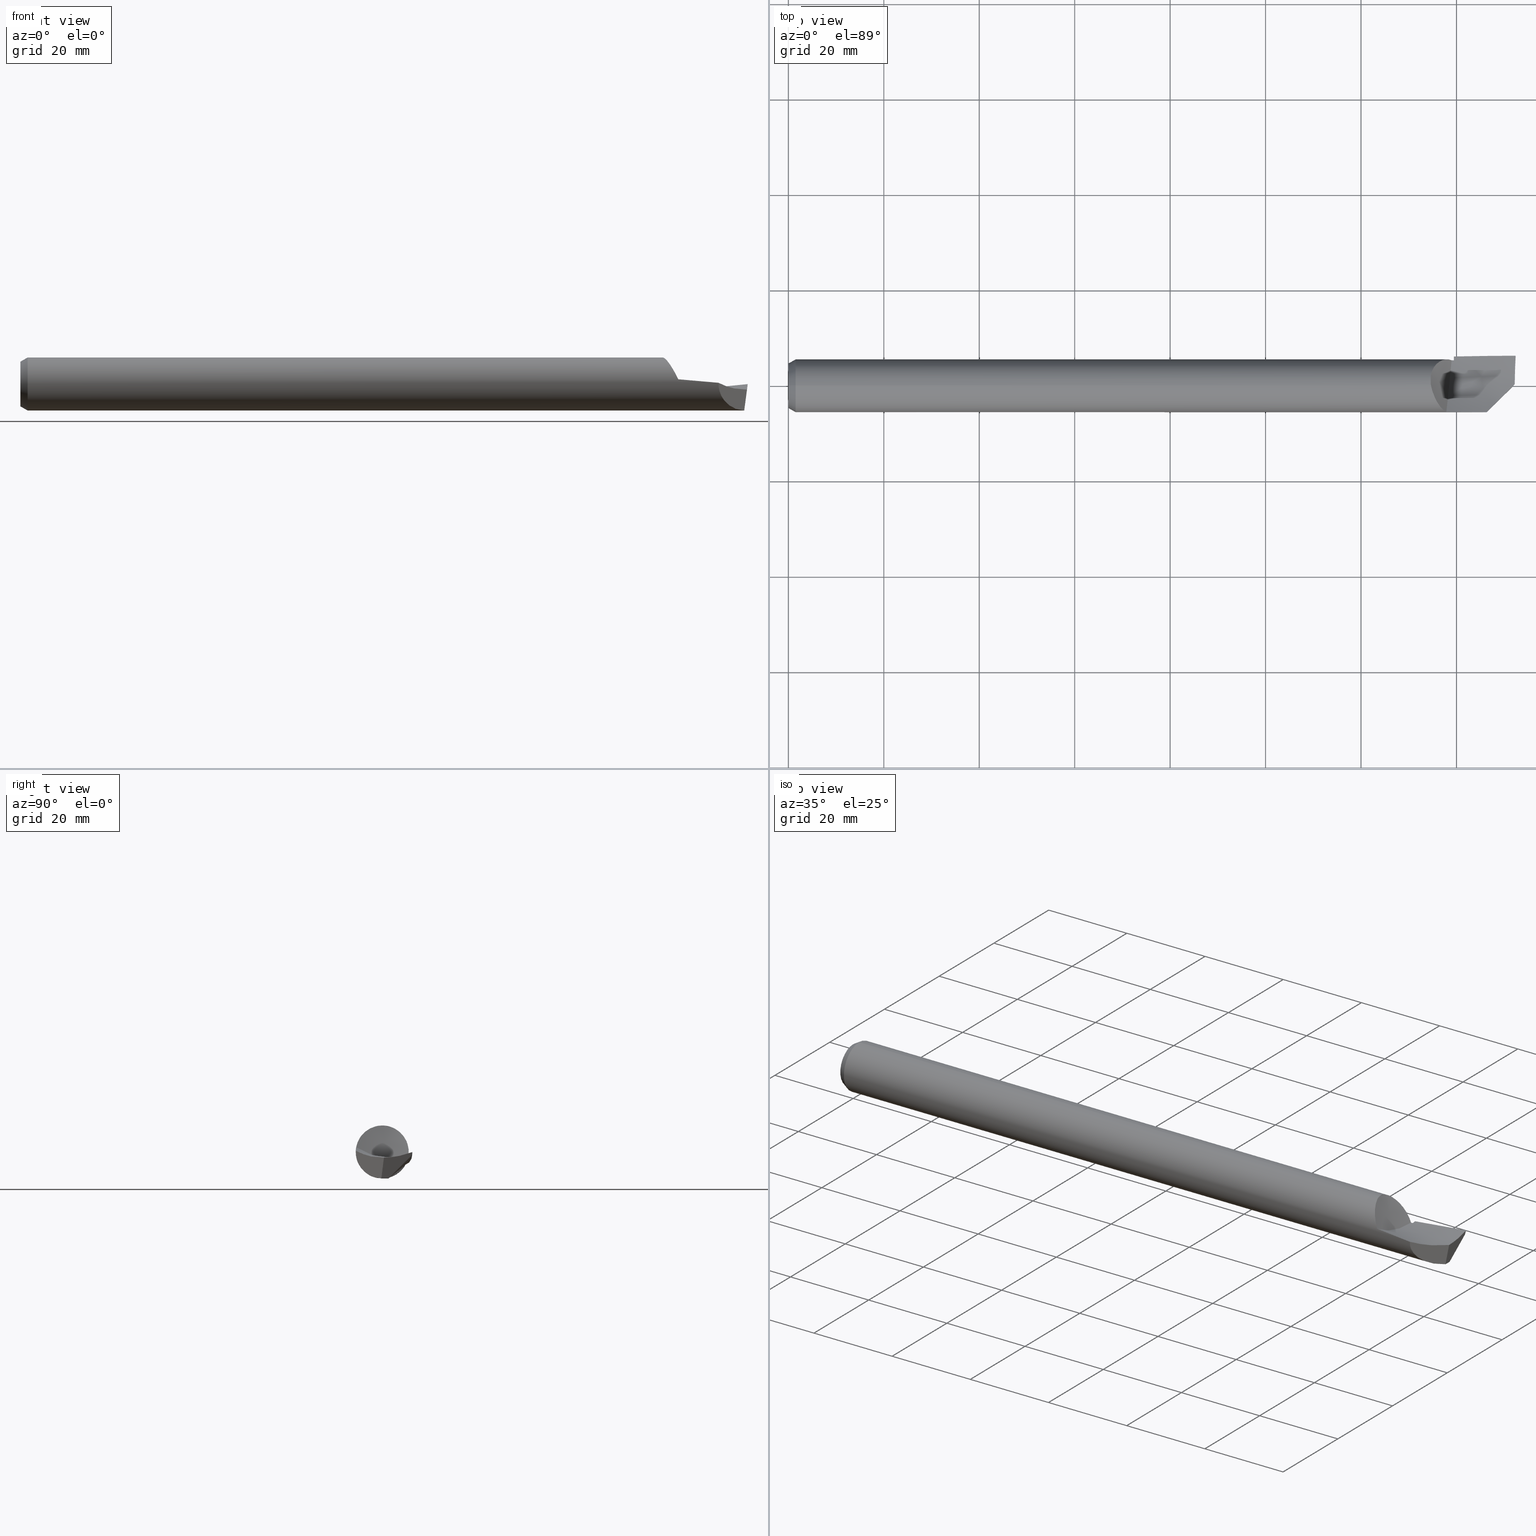
[diagram: canonical four-view strip — front | top / right | iso, engineering-drawing reading convention]
A machine part, canonical four-view strip (front | top / right | iso — engineering-drawing reading convention). The complete STEP part file that produces these views, byte-faithful:
ISO-10303-21;
HEADER;
FILE_DESCRIPTION (( 'STEP AP203' ),
    '1' );
FILE_NAME ('215781-HB480L.STEP',
    '2024-08-09T22:17:15',
    ( '' ),
    ( '' ),
    'SwSTEP 2.0',
    'SolidWorks 2024',
    '' );
FILE_SCHEMA (( 'CONFIG_CONTROL_DESIGN' ));
ENDSEC;

DATA;
#1 = PERSON_AND_ORGANIZATION ( #67, #406 ) ;
#2 = LINE ( 'NONE', #738, #360 ) ;
#3 = EDGE_LOOP ( 'NONE', ( #457, #512, #584, #263, #252, #460, #350, #228 ) ) ;
#4 = EDGE_CURVE ( 'NONE', #675, #630, #467, .T. ) ;
#5 = CARTESIAN_POINT ( 'NONE',  ( 5.428289023255820744, -0.2151305318689210322, 0.03907271116514884901 ) ) ;
#6 = CARTESIAN_POINT ( 'NONE',  ( 5.393751563188459386, 0.2097834464265109777, 0.06168193126618237015 ) ) ;
#7 = VERTEX_POINT ( 'NONE', #640 ) ;
#8 = EDGE_CURVE ( 'NONE', #147, #372, #521, .T. ) ;
#9 = CARTESIAN_POINT ( 'NONE',  ( 5.301726246469367965, -1.097537071317447814E-06, 0.2186592195482874035 ) ) ;
#10 = DIRECTION ( 'NONE',  ( 0.000000000000000000, 0.000000000000000000, -1.000000000000000000 ) ) ;
#11 = CARTESIAN_POINT ( 'NONE',  ( 4.750000000000003553, 0.2147743001385408190, -0.1240000000000000130 ) ) ;
#12 = ORIENTED_EDGE ( 'NONE', *, *, #306, .T. ) ;
#13 = CARTESIAN_POINT ( 'NONE',  ( 5.490000000000001101, 0.2238405633532557781, -0.08433933223662058720 ) ) ;
#14 = ORIENTED_EDGE ( 'NONE', *, *, #398, .T. ) ;
#15 = CARTESIAN_POINT ( 'NONE',  ( 5.301726246469367965, -1.097537071317447814E-06, 0.2186592195482874035 ) ) ;
#16 = DIRECTION ( 'NONE',  ( -1.000000000000000000, -0.000000000000000000, -0.000000000000000000 ) ) ;
#17 = CARTESIAN_POINT ( 'NONE',  ( 5.687500000000002665, 0.2545826248793698343, 0.01735018059832584350 ) ) ;
#18 = ORIENTED_EDGE ( 'NONE', *, *, #577, .F. ) ;
#19 = FACE_OUTER_BOUND ( 'NONE', #103, .T. ) ;
#20 =( BOUNDED_CURVE ( )  B_SPLINE_CURVE ( 2, ( #286, #75, #179 ),
 .UNSPECIFIED., .F., .T. ) 
 B_SPLINE_CURVE_WITH_KNOTS ( ( 3, 3 ),
 ( 0.3930158259847691404, 0.4074109194752292273 ),
 .UNSPECIFIED. ) 
 CURVE ( )  GEOMETRIC_REPRESENTATION_ITEM ( )  RATIONAL_B_SPLINE_CURVE ( ( 0.9733513826577548933, 0.9734889251378002761, 0.9736403117979952615 ) ) 
 REPRESENTATION_ITEM ( '' )  );
#21 = DIRECTION ( 'NONE',  ( 0.000000000000000000, 0.000000000000000000, -1.000000000000000000 ) ) ;
#22 = CC_DESIGN_APPROVAL ( #211, ( #440 ) ) ;
#23 = CARTESIAN_POINT ( 'NONE',  ( 5.995650168487125953, 0.2365632825314394616, -0.03543351693485094489 ) ) ;
#24 = DIRECTION ( 'NONE',  ( 0.000000000000000000, 0.000000000000000000, 1.000000000000000000 ) ) ;
#25 = DIRECTION ( 'NONE',  ( -1.000000000000000000, -0.000000000000000000, -0.000000000000000000 ) ) ;
#26 = CARTESIAN_POINT ( 'NONE',  ( 5.299999999999994493, 0.1070336980627112355, 0.1859076371132536154 ) ) ;
#27 = CARTESIAN_POINT ( 'NONE',  ( 5.474999999999999645, 0.2724528542694113487, -0.009666550597336223336 ) ) ;
#28 = CARTESIAN_POINT ( 'NONE',  ( 5.759944547215720689, -0.2184195880241632803, 0.01003524127038001382 ) ) ;
#29 = EDGE_CURVE ( 'NONE', #326, #562, #552, .T. ) ;
#30 = AXIS2_PLACEMENT_3D ( 'NONE', #99, #148, #505 ) ;
#31 = B_SPLINE_CURVE_WITH_KNOTS ( 'NONE', 3,
 ( #165, #399, #279, #108 ),
 .UNSPECIFIED., .F., .F.,
 ( 4, 4 ),
 ( 9.486140722434075462E-13, 0.008165861144580312952 ),
 .UNSPECIFIED. ) ;
#32 = CARTESIAN_POINT ( 'NONE',  ( 5.300000000000003375, -0.004090850421422781262, 0.2091195024837151639 ) ) ;
#33 = CARTESIAN_POINT ( 'NONE',  ( 0.05999999999999999778, 0.000000000000000000, 0.000000000000000000 ) ) ;
#34 = CARTESIAN_POINT ( 'NONE',  ( 5.992409909881796892, 0.01404577464190508510, -0.04600755233719666659 ) ) ;
#35 = ORIENTED_EDGE ( 'NONE', *, *, #516, .F. ) ;
#36 = FACE_OUTER_BOUND ( 'NONE', #435, .T. ) ;
#37 = CARTESIAN_POINT ( 'NONE',  ( 5.993796581184937189, 0.09343502413978975463, -0.04035679793326613779 ) ) ;
#38 = CARTESIAN_POINT ( 'NONE',  ( 5.482495906476938963, 0.1914835127187947128, -0.1055573765428616945 ) ) ;
#39 = CARTESIAN_POINT ( 'NONE',  ( 5.323851703196349483, -0.07692295761513294472, 0.2046733460412991090 ) ) ;
#40 = CARTESIAN_POINT ( 'NONE',  ( 5.391960524979544367, 0.2090039576888267914, 0.06425115845135193071 ) ) ;
#41 = CARTESIAN_POINT ( 'NONE',  ( 5.354642086951858282, -0.1405036324967387229, 0.1675373154708120482 ) ) ;
#42 = VECTOR ( 'NONE', #525, 39.37007874015748143 ) ;
#43 = PERSON_AND_ORGANIZATION_ROLE ( 'design_supplier' ) ;
#44 = CARTESIAN_POINT ( 'NONE',  ( 5.395925378028884722, 0.2106676904138148898, 0.05855338454461178621 ) ) ;
#45 = ORIENTED_EDGE ( 'NONE', *, *, #661, .F. ) ;
#46 = EDGE_CURVE ( 'NONE', #346, #630, #265, .T. ) ;
#47 = PLANE ( 'NONE',  #537 ) ;
#48 = DIRECTION ( 'NONE',  ( 1.000000000000000000, 0.000000000000000000, 0.000000000000000000 ) ) ;
#49 = CARTESIAN_POINT ( 'NONE',  ( 5.373045229115887444, 0.1987798122955278524, 0.09107372125574716981 ) ) ;
#50 = ORIENTED_EDGE ( 'NONE', *, *, #615, .F. ) ;
#51 = CARTESIAN_POINT ( 'NONE',  ( 5.333018530376169686, -0.09912489433541260553, 0.1953142997923010271 ) ) ;
#52 = MECHANICAL_CONTEXT ( 'NONE', #376, 'mechanical' ) ;
#53 = CARTESIAN_POINT ( 'NONE',  ( 5.327903301790693824, 0.1544032420682446283, 0.1548144573598769780 ) ) ;
#54 = ADVANCED_FACE ( 'NONE', ( #131 ), #231, .T. ) ;
#55 = ORIENTED_EDGE ( 'NONE', *, *, #347, .T. ) ;
#56 = PLANE ( 'NONE',  #30 ) ;
#57 = APPROVAL_ROLE ( '' ) ;
#58 = EDGE_CURVE ( 'NONE', #630, #614, #230, .T. ) ;
#59 = CARTESIAN_POINT ( 'NONE',  ( 5.410943118938225993, 0.2156394942511996315, 0.03669571857654661123 ) ) ;
#60 = VERTEX_POINT ( 'NONE', #536 ) ;
#61 = DIRECTION ( 'NONE',  ( 1.000000000000000000, 0.000000000000000000, -0.000000000000000000 ) ) ;
#62 = CARTESIAN_POINT ( 'NONE',  ( 6.000000000000000888, 0.2480000000000000260, -1.707404996040164512E-17 ) ) ;
#63 = LOCAL_TIME ( 15, 17, 15.00000000000000000, #149 ) ;
#64 = ORIENTED_EDGE ( 'NONE', *, *, #466, .F. ) ;
#65 = CARTESIAN_POINT ( 'NONE',  ( 5.301571563392669439, 0.0009007926053264448708, 0.2186486067439287750 ) ) ;
#66 = VERTEX_POINT ( 'NONE', #609 ) ;
#67 = PERSON ( 'UNSPECIFIED', 'UNSPECIFIED', 'UNSPECIFIED', ('UNSPECIFIED'), ('UNSPECIFIED'), ('UNSPECIFIED') ) ;
#68 =( BOUNDED_CURVE ( )  B_SPLINE_CURVE ( 1, ( #122, #13 ),
 .UNSPECIFIED., .F., .T. ) 
 B_SPLINE_CURVE_WITH_KNOTS ( ( 2, 2 ),
 ( 0.006884580001453515646, 0.007852015136062370088 ),
 .UNSPECIFIED. ) 
 CURVE ( )  GEOMETRIC_REPRESENTATION_ITEM ( )  RATIONAL_B_SPLINE_CURVE ( ( 0.9974221972044264861, 0.9974221972044265971 ) ) 
 REPRESENTATION_ITEM ( '' )  );
#69 = VECTOR ( 'NONE', #392, 39.37007874015748854 ) ;
#70 = CARTESIAN_POINT ( 'NONE',  ( 5.300000000000000711, 0.01069301138062639031, 0.2183883742501275815 ) ) ;
#71 = EDGE_LOOP ( 'NONE', ( #170, #589, #695, #409, #462, #166, #55, #403 ) ) ;
#72 = EDGE_CURVE ( 'NONE', #66, #60, #554, .T. ) ;
#73 = CARTESIAN_POINT ( 'NONE',  ( 6.000000000000000888, 0.2479999999999999982, 0.05000000000000000278 ) ) ;
#74 = EDGE_LOOP ( 'NONE', ( #187, #259, #109, #237, #45 ) ) ;
#75 = CARTESIAN_POINT ( 'NONE',  ( 5.480670511054988481, 0.2112596837126563543, -0.05637239902461495256 ) ) ;
#76 = VERTEX_POINT ( 'NONE', #528 ) ;
#77 = CARTESIAN_POINT ( 'NONE',  ( 5.960552829017625953, -0.01781130622225898102, -0.3031886316655614810 ) ) ;
#78 = CARTESIAN_POINT ( 'NONE',  ( 5.687500000000002665, -0.03374861584210742810, -0.2700840532099205715 ) ) ;
#79 = CARTESIAN_POINT ( 'NONE',  ( 5.300000000000000711, 0.05917864143259982113, 0.2052125541240582551 ) ) ;
#80 = CIRCLE ( 'NONE', #591, 0.2186499999999999555 ) ;
#81 = CARTESIAN_POINT ( 'NONE',  ( 5.971039849105131303, -0.007324286134753231307, -0.2185272919628490351 ) ) ;
#82 = CARTESIAN_POINT ( 'NONE',  ( 5.650423596466452203, 0.02829228920356272742, -0.2186499999999998722 ) ) ;
#83 = PRODUCT_DEFINITION ( 'UNKNOWN', '', #440, #354 ) ;
#84 = B_SPLINE_CURVE_WITH_KNOTS ( 'NONE', 3,
 ( #255, #82, #605, #371 ),
 .UNSPECIFIED., .F., .F.,
 ( 4, 4 ),
 ( 0.0003823762464702322710, 0.01264710855387459094 ),
 .UNSPECIFIED. ) ;
#85 = CARTESIAN_POINT ( 'NONE',  ( 5.490000000000001101, 0.2186499999999999555, 0.000000000000000000 ) ) ;
#86 = CARTESIAN_POINT ( 'NONE',  ( 5.952458880642437222, -0.02590525459744806233, -0.04690927801593707674 ) ) ;
#87 = ORIENTED_EDGE ( 'NONE', *, *, #102, .T. ) ;
#88 = CARTESIAN_POINT ( 'NONE',  ( 5.987540355590122765, 0.1753319710273809617, -0.09712830031008345966 ) ) ;
#89 = DIRECTION ( 'NONE',  ( 0.000000000000000000, 0.000000000000000000, 1.000000000000000000 ) ) ;
#90 = CARTESIAN_POINT ( 'NONE',  ( 6.000000000000000888, 0.2480000000000000260, -1.463319104154880760E-17 ) ) ;
#91 = AXIS2_PLACEMENT_3D ( 'NONE', #364, #531, #135 ) ;
#92 = DIRECTION ( 'NONE',  ( 0.000000000000000000, 0.000000000000000000, 1.000000000000000000 ) ) ;
#93 = CARTESIAN_POINT ( 'NONE',  ( 5.300000000000000711, 0.000000000000000000, 0.000000000000000000 ) ) ;
#94 = CARTESIAN_POINT ( 'NONE',  ( 5.489999999999999325, 0.2423699690041354604, -0.05254329762143241517 ) ) ;
#95 = CARTESIAN_POINT ( 'NONE',  ( 5.317997827412834333, -0.06112191080452025749, 0.2099624141757666929 ) ) ;
#96 = COORDINATED_UNIVERSAL_TIME_OFFSET ( 8, 0, .BEHIND. ) ;
#97 = CARTESIAN_POINT ( 'NONE',  ( 5.422981224190761118, 0.2178384048208436286, 0.01882239950287517907 ) ) ;
#98 = UNCERTAINTY_MEASURE_WITH_UNIT (LENGTH_MEASURE( 1.000000000000000082E-05 ), #107, 'distance_accuracy_value', 'NONE');
#99 = CARTESIAN_POINT ( 'NONE',  ( 5.300000000000000711, 0.1824301013413827943, 0.6279285274810921802 ) ) ;
#100 =( NAMED_UNIT ( * ) PLANE_ANGLE_UNIT ( ) SI_UNIT ( $, .RADIAN. ) );
#101 = CARTESIAN_POINT ( 'NONE',  ( 5.423132256118122108, 0.2178578002910109834, 0.01859591843064410319 ) ) ;
#102 = EDGE_CURVE ( 'NONE', #675, #223, #84, .T. ) ;
#103 = EDGE_LOOP ( 'NONE', ( #199, #518, #691, #175, #338 ) ) ;
#104 = EDGE_CURVE ( 'NONE', #504, #147, #723, .T. ) ;
#105 = VECTOR ( 'NONE', #25, 39.37007874015748143 ) ;
#106 = CARTESIAN_POINT ( 'NONE',  ( 0.000000000000000000, 0.000000000000000000, 0.2186499999999999555 ) ) ;
#107 =( CONVERSION_BASED_UNIT ( 'INCH', #559 ) LENGTH_UNIT ( ) NAMED_UNIT ( #566 ) );
#108 = CARTESIAN_POINT ( 'NONE',  ( 5.489999999999968239, 0.2426219749193216091, -0.05138085314958806132 ) ) ;
#109 = ORIENTED_EDGE ( 'NONE', *, *, #248, .T. ) ;
#110 = CC_DESIGN_PERSON_AND_ORGANIZATION_ASSIGNMENT ( #1, #43, ( #440 ) ) ;
#111 = DIRECTION ( 'NONE',  ( 0.000000000000000000, 0.000000000000000000, 1.000000000000000000 ) ) ;
#112 = CARTESIAN_POINT ( 'NONE',  ( 5.339809942963882783, 0.1702993353926174069, 0.1377509704733041185 ) ) ;
#113 = ORIENTED_EDGE ( 'NONE', *, *, #331, .T. ) ;
#114 = EDGE_CURVE ( 'NONE', #215, #194, #652, .T. ) ;
#115 = DIRECTION ( 'NONE',  ( 1.000000000000000000, 0.000000000000000000, 0.000000000000000000 ) ) ;
#116 = CARTESIAN_POINT ( 'NONE',  ( 5.363905207600467406, 0.1924089063709986391, 0.1039229917590410029 ) ) ;
#117 = EDGE_LOOP ( 'NONE', ( #280, #413, #685, #430, #12, #289, #113, #439 ) ) ;
#118 = CARTESIAN_POINT ( 'NONE',  ( 5.971039849105131303, -0.007324286134753231307, -0.2185272919628490351 ) ) ;
#119 = CIRCLE ( 'NONE', #172, 0.2186499999999999555 ) ;
#120 = CARTESIAN_POINT ( 'NONE',  ( 5.301184492781922053, 0.003146918431384278843, 0.2186305735167796416 ) ) ;
#121 = VERTEX_POINT ( 'NONE', #533 ) ;
#122 = CARTESIAN_POINT ( 'NONE',  ( 5.489999999999998437, 0.1918135994642089504, -0.1049541116906446137 ) ) ;
#123 = ORIENTED_EDGE ( 'NONE', *, *, #306, .F. ) ;
#124 = FACE_OUTER_BOUND ( 'NONE', #391, .T. ) ;
#125 = ORIENTED_EDGE ( 'NONE', *, *, #197, .T. ) ;
#126 = EDGE_CURVE ( 'NONE', #630, #121, #649, .T. ) ;
#127 = CIRCLE ( 'NONE', #157, 0.2186499999999999555 ) ;
#128 = CARTESIAN_POINT ( 'NONE',  ( 5.489999999999968239, 0.2426219749193216091, -0.05138085314958806132 ) ) ;
#129 = ORIENTED_EDGE ( 'NONE', *, *, #58, .F. ) ;
#130 = CARTESIAN_POINT ( 'NONE',  ( 5.675925925925927373, 0.09757933157101621180, -0.08420579190847984896 ) ) ;
#131 = FACE_OUTER_BOUND ( 'NONE', #156, .T. ) ;
#132 = CARTESIAN_POINT ( 'NONE',  ( 5.474996901347982892, 0.01471922584789439950, -0.2181539979772590399 ) ) ;
#133 = CARTESIAN_POINT ( 'NONE',  ( 5.992943527074801047, 0.05368886949585607860, -0.04447926573626069524 ) ) ;
#134 = CARTESIAN_POINT ( 'NONE',  ( 5.490000000000001101, 0.2186499999999999555, -0.2186499999999999277 ) ) ;
#135 = DIRECTION ( 'NONE',  ( 0.000000000000000000, 0.000000000000000000, 1.000000000000000000 ) ) ;
#136 = CARTESIAN_POINT ( 'NONE',  ( 5.926130615619848996, 0.2477060359061866723, -0.008186851868489166198 ) ) ;
#137 = CARTESIAN_POINT ( 'NONE',  ( 5.375000000000001776, 0.2195062469289533191, -0.09505118791255254274 ) ) ;
#138 = CARTESIAN_POINT ( 'NONE',  ( 5.482495906476937186, 0.01541270954320097045, -0.2181071841326581995 ) ) ;
#139 = CARTESIAN_POINT ( 'NONE',  ( 5.809895244831493777, 0.2472116736001752357, -0.01975824981623535564 ) ) ;
#140 = CARTESIAN_POINT ( 'NONE',  ( 5.062500000000004441, 0.2069925206416169117, -0.1239497335567849301 ) ) ;
#141 = CARTESIAN_POINT ( 'NONE',  ( 5.300000000000000711, -0.09244828656994326377, 0.2677915732775291713 ) ) ;
#142 = CARTESIAN_POINT ( 'NONE',  ( 5.992409909881796892, 0.01404577464190508510, -0.04600755233719666659 ) ) ;
#143 = CARTESIAN_POINT ( 'NONE',  ( 0.000000000000000000, 0.000000000000000000, 0.000000000000000000 ) ) ;
#144 = CARTESIAN_POINT ( 'NONE',  ( 5.848640842118944860, 0.2474659832089972644, -0.01591075100367607409 ) ) ;
#145 = CARTESIAN_POINT ( 'NONE',  ( 5.367185262199287266, -0.1604174294540079426, 0.1490964670851400165 ) ) ;
#146 = CALENDAR_DATE ( 2024, 9, 8 ) ;
#147 = VERTEX_POINT ( 'NONE', #247 ) ;
#148 = DIRECTION ( 'NONE',  ( -1.000000000000000000, 0.000000000000000000, 0.000000000000000000 ) ) ;
#149 = COORDINATED_UNIVERSAL_TIME_OFFSET ( 8, 0, .BEHIND. ) ;
#150 = CARTESIAN_POINT ( 'NONE',  ( 5.372283168852959534, 0.1982860555661837831, 0.09214581790529133287 ) ) ;
#151 = EDGE_CURVE ( 'NONE', #385, #76, #581, .T. ) ;
#152 = ORIENTED_EDGE ( 'NONE', *, *, #29, .T. ) ;
#153 = CARTESIAN_POINT ( 'NONE',  ( 5.353799381708173044, -0.1390748737465828111, 0.1687191142472262428 ) ) ;
#154 = CALENDAR_DATE ( 2024, 9, 8 ) ;
#155 = CARTESIAN_POINT ( 'NONE',  ( 5.376457864700658007, 0.2009676489907449570, 0.08627223400866519676 ) ) ;
#156 = EDGE_LOOP ( 'NONE', ( #408, #342, #219, #310 ) ) ;
#157 = AXIS2_PLACEMENT_3D ( 'NONE', #33, #718, #89 ) ;
#158 = ADVANCED_FACE ( 'NONE', ( #204 ), #322, .T. ) ;
#159 = CARTESIAN_POINT ( 'NONE',  ( 5.453529265273479254, 0.02632038727175991036, -0.05321014791944884276 ) ) ;
#160 = CALENDAR_DATE ( 2024, 9, 8 ) ;
#161 = CARTESIAN_POINT ( 'NONE',  ( 5.315200195965978480, 0.1325952822649145157, 0.1740109497427283214 ) ) ;
#162 = ORIENTED_EDGE ( 'NONE', *, *, #634, .F. ) ;
#163 = CARTESIAN_POINT ( 'NONE',  ( 5.314552961290850419, -0.05098192065812419405, 0.2127387826740966270 ) ) ;
#164 = DATE_TIME_ROLE ( 'creation_date' ) ;
#165 = CARTESIAN_POINT ( 'NONE',  ( 5.809895244831493777, 0.2472116736001752357, -0.01975824981623535564 ) ) ;
#166 = ORIENTED_EDGE ( 'NONE', *, *, #240, .T. ) ;
#167 =( BOUNDED_SURFACE ( )  B_SPLINE_SURFACE ( 1, 2, ( 
 ( #73, #17, #185, #699, #294 ),
 ( #62, #174, #352, #639, #11 ) ),
 .UNSPECIFIED., .F., .F., .T. ) 
 B_SPLINE_SURFACE_WITH_KNOTS ( ( 2, 2 ),
 ( 3, 2, 3 ),
 ( 0.000000000000000000, 1.000000000000000000 ),
 ( 0.000000000000000000, 0.5000000000000000000, 1.000000000000000000 ),
 .UNSPECIFIED. ) 
 GEOMETRIC_REPRESENTATION_ITEM ( )  RATIONAL_B_SPLINE_SURFACE ( (
 ( 1.000000000000000000, 0.9914448613738103822, 1.000000000000000000, 0.9914448613738103822, 1.000000000000000000),
 ( 1.000000000000000000, 0.9914448613738103822, 1.000000000000000000, 0.9914448613738103822, 1.000000000000000000) ) ) 
 REPRESENTATION_ITEM ( '' )  SURFACE ( )  );
#168 = CARTESIAN_POINT ( 'NONE',  ( 5.490000000000001101, 0.000000000000000000, -0.2186499999999999277 ) ) ;
#169 = CARTESIAN_POINT ( 'NONE',  ( 5.420983759668443369, 0.2175622048859018609, 0.02180692788309914962 ) ) ;
#170 = ORIENTED_EDGE ( 'NONE', *, *, #522, .F. ) ;
#171 = B_SPLINE_CURVE_WITH_KNOTS ( 'NONE', 3,
 ( #201, #421, #246, #136, #308, #144, #139 ),
 .UNSPECIFIED., .F., .F.,
 ( 4, 3, 4 ),
 ( 6.776263578034401960E-21, 0.001885633772096463210, 0.004852637163711255412 ),
 .UNSPECIFIED. ) ;
#172 = AXIS2_PLACEMENT_3D ( 'NONE', #656, #668, #21 ) ;
#173 =( BOUNDED_CURVE ( )  B_SPLINE_CURVE ( 1, ( #587, #543 ),
 .UNSPECIFIED., .F., .F. ) 
 B_SPLINE_CURVE_WITH_KNOTS ( ( 2, 2 ),
 ( 0.001548922772798221568, 0.001576772748276450507 ),
 .UNSPECIFIED. ) 
 CURVE ( )  GEOMETRIC_REPRESENTATION_ITEM ( )  RATIONAL_B_SPLINE_CURVE ( ( 0.9974221972044267082, 0.9974221972044268192 ) ) 
 REPRESENTATION_ITEM ( '' )  );
#174 = CARTESIAN_POINT ( 'NONE',  ( 5.687500000000002665, 0.2480000000000000260, -0.03264981940167419050 ) ) ;
#175 = ORIENTED_EDGE ( 'NONE', *, *, #29, .F. ) ;
#176 = EDGE_CURVE ( 'NONE', #293, #180, #119, .T. ) ;
#177 = CC_DESIGN_APPROVAL ( #636, ( #83 ) ) ;
#178 = EDGE_LOOP ( 'NONE', ( #87, #739, #129, #270 ) ) ;
#179 = CARTESIAN_POINT ( 'NONE',  ( 5.471346566983472215, 0.2110442653468279917, -0.05716765312847500030 ) ) ;
#180 = VERTEX_POINT ( 'NONE', #243 ) ;
#181 = MANIFOLD_SOLID_BREP ( 'Front Angle', #592 ) ;
#182 = VECTOR ( 'NONE', #680, 39.37007874015748143 ) ;
#183 = CARTESIAN_POINT ( 'NONE',  ( 5.351851851851854747, -0.1213287675546839833, -0.04010792443079629760 ) ) ;
#184 = VERTEX_POINT ( 'NONE', #142 ) ;
#185 = CARTESIAN_POINT ( 'NONE',  ( 5.375000000000001776, 0.2524905571748149447, -0.01589083187097172639 ) ) ;
#186 = CARTESIAN_POINT ( 'NONE',  ( 6.000000000000000888, 0.2477392110322483298, -0.0008026259127263668785 ) ) ;
#187 = ORIENTED_EDGE ( 'NONE', *, *, #452, .F. ) ;
#188 = DIRECTION ( 'NONE',  ( 0.000000000000000000, 0.000000000000000000, -1.000000000000000000 ) ) ;
#189 = PLANE ( 'NONE',  #508 ) ;
#190 = CARTESIAN_POINT ( 'NONE',  ( 5.743449343808144647, 0.2327994020812706732, -0.06056215194968579685 ) ) ;
#191 = CARTESIAN_POINT ( 'NONE',  ( 6.000000000000000888, 0.2477392110322483298, -0.0008026259127263668785 ) ) ;
#192 = FACE_OUTER_BOUND ( 'NONE', #679, .T. ) ;
#193 = CARTESIAN_POINT ( 'NONE',  ( 5.490000000000001101, 0.000000000000000000, 0.000000000000000000 ) ) ;
#194 = VERTEX_POINT ( 'NONE', #598 ) ;
#195 = DIRECTION ( 'NONE',  ( 1.000000000000000000, 0.000000000000000000, 0.000000000000000000 ) ) ;
#196 = CARTESIAN_POINT ( 'NONE',  ( 5.994331206119609234, 0.1133106296732995510, -0.03741539065945066744 ) ) ;
#197 = EDGE_CURVE ( 'NONE', #184, #576, #629, .T. ) ;
#198 = CARTESIAN_POINT ( 'NONE',  ( 5.649779223696825170, 0.2458885538011448546, -0.03631288714484036395 ) ) ;
#199 = ORIENTED_EDGE ( 'NONE', *, *, #557, .F. ) ;
#200 = CARTESIAN_POINT ( 'NONE',  ( 5.675925925925928262, 0.3026628233134074919, -0.01811048715039669660 ) ) ;
#201 = CARTESIAN_POINT ( 'NONE',  ( 6.000000000000000888, 0.2477392110322483298, -0.0008026259127263668785 ) ) ;
#202 = CARTESIAN_POINT ( 'NONE',  ( 0.000000000000000000, 0.000000000000000000, 0.000000000000000000 ) ) ;
#203 = SECURITY_CLASSIFICATION_LEVEL ( 'unclassified' ) ;
#204 = FACE_OUTER_BOUND ( 'NONE', #74, .T. ) ;
#205 = EDGE_LOOP ( 'NONE', ( #358, #233, #555, #351, #509, #450, #513, #123, #689, #499, #444, #619 ) ) ;
#206 = VECTOR ( 'NONE', #595, 39.37007874015748143 ) ;
#207 = CARTESIAN_POINT ( 'NONE',  ( 5.759944547215720689, -0.2184195880241632803, 0.01003524127038001382 ) ) ;
#208 = CARTESIAN_POINT ( 'NONE',  ( 5.327339098440490694, 0.1535724871066054542, 0.1556396391440466598 ) ) ;
#209 = ORIENTED_EDGE ( 'NONE', *, *, #674, .F. ) ;
#210 = CC_DESIGN_APPROVAL ( #396, ( #500 ) ) ;
#211 = APPROVAL ( #682, 'UNSPECIFIED' ) ;
#212 = LINE ( 'NONE', #729, #69 ) ;
#213 =( NAMED_UNIT ( * ) SI_UNIT ( $, .STERADIAN. ) SOLID_ANGLE_UNIT ( ) );
#214 = CARTESIAN_POINT ( 'NONE',  ( 5.373198069281534650, 0.1988781926060893268, 0.09085868690086847110 ) ) ;
#215 = VERTEX_POINT ( 'NONE', #251 ) ;
#216 = CARTESIAN_POINT ( 'NONE',  ( 5.467775382269694617, 0.1747646242851793319, -0.06124491988081876004 ) ) ;
#217 = CARTESIAN_POINT ( 'NONE',  ( 0.000000000000000000, 0.000000000000000000, 0.000000000000000000 ) ) ;
#218 = CARTESIAN_POINT ( 'NONE',  ( 5.423203999389651031, 0.2178669501258466701, 0.01848827045659682394 ) ) ;
#219 = ORIENTED_EDGE ( 'NONE', *, *, #709, .T. ) ;
#220 = CARTESIAN_POINT ( 'NONE',  ( 5.383913653070428573, -0.1816157460054630135, 0.1217936843185418311 ) ) ;
#221 = PERSON_AND_ORGANIZATION ( #67, #406 ) ;
#222 = CARTESIAN_POINT ( 'NONE',  ( 5.397033353014940360, 0.2111023645173870367, 0.05695621974847463881 ) ) ;
#223 = VERTEX_POINT ( 'NONE', #426 ) ;
#224 = CARTESIAN_POINT ( 'NONE',  ( 5.432181049313783205, -0.1841263147728427196, 0.01977626706365450890 ) ) ;
#225 = B_SPLINE_CURVE_WITH_KNOTS ( 'NONE', 3,
 ( #15, #575, #65, #232, #120, #349, #288, #70 ),
 .UNSPECIFIED., .F., .F.,
 ( 4, 2, 1, 1, 4 ),
 ( 0.9685658636575108504, 0.9724951307003227852, 0.9764243977431347199, 0.9842829318287569240, 1.000000000000000000 ),
 .UNSPECIFIED. ) ;
#226 = PRODUCT_DEFINITION_SHAPE ( 'NONE', 'NONE',  #83 ) ;
#227 = CARTESIAN_POINT ( 'NONE',  ( 5.417222582560270894, 0.2169486243322618635, 0.02740261093453771543 ) ) ;
#228 = ORIENTED_EDGE ( 'NONE', *, *, #269, .F. ) ;
#229 = CARTESIAN_POINT ( 'NONE',  ( 5.593749806622911436, -0.2177474673098442060, 0.02466412019502455671 ) ) ;
#230 = LINE ( 'NONE', #475, #206 ) ;
#231 = CONICAL_SURFACE ( 'NONE', #651, 0.2186499999999999555, 0.5235987755983002589 ) ;
#232 = CARTESIAN_POINT ( 'NONE',  ( 5.301415447608443188, 0.001800015976620992272, 0.2186430529444348403 ) ) ;
#233 = ORIENTED_EDGE ( 'NONE', *, *, #126, .T. ) ;
#234 = CARTESIAN_POINT ( 'NONE',  ( 5.027777777777780344, -0.2711689373457302765, 0.1356472697095485735 ) ) ;
#235 = VERTEX_POINT ( 'NONE', #483 ) ;
#236 = CARTESIAN_POINT ( 'NONE',  ( 0.05999999999999999778, 0.000000000000000000, 0.2186499999999999555 ) ) ;
#237 = ORIENTED_EDGE ( 'NONE', *, *, #114, .F. ) ;
#238 = CARTESIAN_POINT ( 'NONE',  ( 5.465102704248059773, 0.2138155167977597859, -0.04696383832082493687 ) ) ;
#239 = CARTESIAN_POINT ( 'NONE',  ( 5.490000000000001101, 0.000000000000000000, 0.000000000000000000 ) ) ;
#240 = EDGE_CURVE ( 'NONE', #180, #60, #692, .T. ) ;
#241 = CYLINDRICAL_SURFACE ( 'NONE', #290, 0.2186499999999999555 ) ;
#242 = CARTESIAN_POINT ( 'NONE',  ( 5.996235550854351004, 0.1720403349151072014, -0.02608037137611426623 ) ) ;
#243 = CARTESIAN_POINT ( 'NONE',  ( 5.474998967115993764, 0.1911388645456205126, -0.1061779492325103658 ) ) ;
#244 = APPROVAL_PERSON_ORGANIZATION ( #497, #636, #57 ) ;
#245 = CARTESIAN_POINT ( 'NONE',  ( 5.490000000000001101, 0.01609851000112820160, -0.2180565533886646701 ) ) ;
#246 = CARTESIAN_POINT ( 'NONE',  ( 5.950754092320284627, 0.2477536593525600239, -0.005729369259274476670 ) ) ;
#247 = CARTESIAN_POINT ( 'NONE',  ( 0.000000000000000000, 2.465575178590705122E-17, 0.1840089838486222984 ) ) ;
#248 = EDGE_CURVE ( 'NONE', #76, #194, #740, .T. ) ;
#249 = CARTESIAN_POINT ( 'NONE',  ( 5.971067388946768695, -0.002441999748249901094, -0.2186499999999999555 ) ) ;
#250 = CARTESIAN_POINT ( 'NONE',  ( 6.000000000000000888, 0.001777810631851324845, -0.2698499999999999233 ) ) ;
#251 = CARTESIAN_POINT ( 'NONE',  ( 5.809895244831493777, 0.2472116736001752357, -0.01975824981623535564 ) ) ;
#252 = ORIENTED_EDGE ( 'NONE', *, *, #331, .F. ) ;
#253 = LINE ( 'NONE', #77, #487 ) ;
#254 = CARTESIAN_POINT ( 'NONE',  ( 5.062500000000004441, -0.1025015563926100354, -0.2521463777385072325 ) ) ;
#255 = CARTESIAN_POINT ( 'NONE',  ( 5.490000000000001101, 0.01517653587899470483, -0.2186499999999620969 ) ) ;
#256 = CARTESIAN_POINT ( 'NONE',  ( 0.05999999999999999778, 0.000000000000000000, 0.000000000000000000 ) ) ;
#257 = PLANE ( 'NONE',  #681 ) ;
#258 = DIRECTION ( 'NONE',  ( -1.000000000000000000, -0.000000000000000000, -0.000000000000000000 ) ) ;
#259 = ORIENTED_EDGE ( 'NONE', *, *, #151, .T. ) ;
#260 = CARTESIAN_POINT ( 'NONE',  ( 5.464212849416286488, 0.1377136875928074988, -0.06237143978746857026 ) ) ;
#261 = DATE_AND_TIME ( #548, #380 ) ;
#262 = CARTESIAN_POINT ( 'NONE',  ( 5.397994206653936367, 0.2114706548956107601, 0.05556976712593802298 ) ) ;
#263 = ORIENTED_EDGE ( 'NONE', *, *, #615, .T. ) ;
#264 = CC_DESIGN_PERSON_AND_ORGANIZATION_ASSIGNMENT ( #432, #667, ( #500 ) ) ;
#265 = CIRCLE ( 'NONE', #327, 0.2186499999999999555 ) ;
#266 = CARTESIAN_POINT ( 'NONE',  ( 5.328253007059424284, -0.08813334624505253512, 0.2004187933001320143 ) ) ;
#267 = APPROVAL_DATE_TIME ( #383, #396 ) ;
#268 = CARTESIAN_POINT ( 'NONE',  ( 5.397833416469516976, 0.2114095307937702561, 0.05580185651004301167 ) ) ;
#269 = EDGE_CURVE ( 'NONE', #121, #372, #80, .T. ) ;
#270 = ORIENTED_EDGE ( 'NONE', *, *, #4, .F. ) ;
#271 = CC_DESIGN_SECURITY_CLASSIFICATION ( #500, ( #440 ) ) ;
#272 = DIRECTION ( 'NONE',  ( 0.000000000000000000, 0.000000000000000000, -1.000000000000000000 ) ) ;
#273 = PERSON_AND_ORGANIZATION_ROLE ( 'design_owner' ) ;
#274 = CARTESIAN_POINT ( 'NONE',  ( 5.355166375661937650, 0.1853570673493258048, 0.1161901871610538928 ) ) ;
#275 = EDGE_LOOP ( 'NONE', ( #579, #405, #669 ) ) ;
#276 = CARTESIAN_POINT ( 'NONE',  ( 5.348460418300624575, -0.1297214670295155914, 0.1760449541647363114 ) ) ;
#277 = EDGE_CURVE ( 'NONE', #180, #293, #2, .T. ) ;
#278 = APPROVAL_DATE_TIME ( #378, #636 ) ;
#279 = CARTESIAN_POINT ( 'NONE',  ( 5.596629930743068471, 0.2448327961100064953, -0.04093195773288702682 ) ) ;
#280 = ORIENTED_EDGE ( 'NONE', *, *, #638, .F. ) ;
#281 =( GEOMETRIC_REPRESENTATION_CONTEXT ( 3 ) GLOBAL_UNCERTAINTY_ASSIGNED_CONTEXT ( ( #98 ) ) GLOBAL_UNIT_ASSIGNED_CONTEXT ( ( #107, #100, #213 ) ) REPRESENTATION_CONTEXT ( 'NONE', 'WORKASPACE' ) );
#282 = CARTESIAN_POINT ( 'NONE',  ( 5.471346566983472215, 0.2110442653468279917, -0.05716765312847500030 ) ) ;
#283 = CARTESIAN_POINT ( 'NONE',  ( 5.312534214554918144, 0.1267698187323551273, 0.1782919693017149532 ) ) ;
#284 = ORIENTED_EDGE ( 'NONE', *, *, #46, .F. ) ;
#285 = PLANE ( 'NONE',  #703 ) ;
#286 = CARTESIAN_POINT ( 'NONE',  ( 5.490000000000002878, 0.2114691027157991898, -0.05557554405431821415 ) ) ;
#287 = ORIENTED_EDGE ( 'NONE', *, *, #600, .T. ) ;
#288 = CARTESIAN_POINT ( 'NONE',  ( 5.300264159778933504, 0.008933953364436371392, 0.2184745173646364946 ) ) ;
#289 = ORIENTED_EDGE ( 'NONE', *, *, #606, .T. ) ;
#290 = AXIS2_PLACEMENT_3D ( 'NONE', #143, #307, #92 ) ;
#291 = FACE_OUTER_BOUND ( 'NONE', #117, .T. ) ;
#292 = EDGE_CURVE ( 'NONE', #215, #335, #31, .T. ) ;
#293 = VERTEX_POINT ( 'NONE', #690 ) ;
#294 = CARTESIAN_POINT ( 'NONE',  ( 4.750000000000003553, 0.2397743001385407857, -0.08069872981077803875 ) ) ;
#295 = EDGE_LOOP ( 'NONE', ( #494, #626, #400, #637 ) ) ;
#296 = CARTESIAN_POINT ( 'NONE',  ( 5.759944547215720689, -0.2184195880241632803, 0.01003524127038001382 ) ) ;
#297 = CARTESIAN_POINT ( 'NONE',  ( 0.05999999999999999778, 2.677690226335687467E-17, 0.2186499999999999555 ) ) ;
#298 =( BOUNDED_SURFACE ( )  B_SPLINE_SURFACE ( 3, 2, ( 
 ( #341, #461, #471, #234, #635 ),
 ( #517, #465, #183, #572, #412 ),
 ( #642, #130, #647, #714, #526 ),
 ( #717, #200, #603, #359, #476 ) ),
 .UNSPECIFIED., .F., .F., .T. ) 
 B_SPLINE_SURFACE_WITH_KNOTS ( ( 4, 4 ),
 ( 3, 2, 3 ),
 ( 0.000000000000000000, 1.000000000000000000 ),
 ( 0.000000000000000000, 0.5000000000000000000, 1.000000000000000000 ),
 .UNSPECIFIED. ) 
 GEOMETRIC_REPRESENTATION_ITEM ( )  RATIONAL_B_SPLINE_SURFACE ( (
 ( 1.000000000000000000, 0.9914448613738103822, 1.000000000000000000, 0.9914448613738103822, 1.000000000000000000),
 ( 0.9357396776127722138, 0.9277342949527689342, 0.9357396776127722138, 0.9277342949527689342, 0.9357396776127722138),
 ( 0.9357396776127722138, 0.9277342949527689342, 0.9357396776127722138, 0.9277342949527689342, 0.9357396776127722138),
 ( 1.000000000000000000, 0.9914448613738103822, 1.000000000000000000, 0.9914448613738103822, 1.000000000000000000) ) ) 
 REPRESENTATION_ITEM ( '' )  SURFACE ( )  );
#299 = CARTESIAN_POINT ( 'NONE',  ( 5.300000000000003375, 0.2113664015079515235, 0.2040851448814152980 ) ) ;
#300 = AXIS2_PLACEMENT_3D ( 'NONE', #193, #490, #302 ) ;
#301 = CARTESIAN_POINT ( 'NONE',  ( 4.750000000000003553, 0.1874256952490743477, -0.1486247944483796435 ) ) ;
#302 = DIRECTION ( 'NONE',  ( 0.000000000000000000, 0.000000000000000000, 1.000000000000000000 ) ) ;
#303 = CARTESIAN_POINT ( 'NONE',  ( 5.489999999999999325, 0.2423699690041354604, -0.05254329762143241517 ) ) ;
#304 = CARTESIAN_POINT ( 'NONE',  ( 0.000000000000000000, 0.000000000000000000, 0.000000000000000000 ) ) ;
#305 = EDGE_CURVE ( 'NONE', #562, #7, #567, .T. ) ;
#306 = EDGE_CURVE ( 'NONE', #66, #7, #20, .T. ) ;
#307 = DIRECTION ( 'NONE',  ( -1.000000000000000000, -0.000000000000000000, -0.000000000000000000 ) ) ;
#308 = CARTESIAN_POINT ( 'NONE',  ( 5.887386176554733730, 0.2476311015767038437, -0.01205364072063427536 ) ) ;
#309 = CARTESIAN_POINT ( 'NONE',  ( 5.835613050715351413, -0.1427510845245330839, -0.02409170463590315156 ) ) ;
#310 = ORIENTED_EDGE ( 'NONE', *, *, #736, .F. ) ;
#311 = DIRECTION ( 'NONE',  ( 0.1218739150664907706, 0.000000000000000000, 0.9925455903012041503 ) ) ;
#312 = AXIS2_PLACEMENT_3D ( 'NONE', #365, #658, #535 ) ;
#313 =( LENGTH_UNIT ( ) NAMED_UNIT ( * ) SI_UNIT ( $, .METRE. ) );
#314 = CYLINDRICAL_SURFACE ( 'NONE', #91, 0.2186499999999999555 ) ;
#315 = CARTESIAN_POINT ( 'NONE',  ( 0.05999999999999999778, 0.000000000000000000, -0.2186499999999999555 ) ) ;
#316 = CARTESIAN_POINT ( 'NONE',  ( 0.05999999999999999778, 0.000000000000000000, 0.000000000000000000 ) ) ;
#317 = VERTEX_POINT ( 'NONE', #9 ) ;
#318 = CARTESIAN_POINT ( 'NONE',  ( 0.000000000000000000, 0.000000000000000000, 0.000000000000000000 ) ) ;
#319 = PERSON_AND_ORGANIZATION ( #67, #406 ) ;
#320 = CARTESIAN_POINT ( 'NONE',  ( 5.405285100613323124, 0.2142245497771485541, 0.04504311766564184083 ) ) ;
#321 = ADVANCED_FACE ( 'NONE', ( #694 ), #167, .T. ) ;
#322 =( BOUNDED_SURFACE ( )  B_SPLINE_SURFACE ( 1, 2, ( 
 ( #90, #422, #433, #542, #419 ),
 ( #664, #659, #137, #140, #486 ) ),
 .UNSPECIFIED., .F., .F., .T. ) 
 B_SPLINE_SURFACE_WITH_KNOTS ( ( 2, 2 ),
 ( 3, 2, 3 ),
 ( 0.000000000000000000, 1.000000000000000000 ),
 ( 0.000000000000000000, 0.5000000000000000000, 1.000000000000000000 ),
 .UNSPECIFIED. ) 
 GEOMETRIC_REPRESENTATION_ITEM ( )  RATIONAL_B_SPLINE_SURFACE ( (
 ( 1.000000000000000000, 0.9914448613738103822, 1.000000000000000000, 0.9914448613738103822, 1.000000000000000000),
 ( 1.000000000000000000, 0.9914448613738103822, 1.000000000000000000, 0.9914448613738103822, 1.000000000000000000) ) ) 
 REPRESENTATION_ITEM ( '' )  SURFACE ( )  );
#323 = CARTESIAN_POINT ( 'NONE',  ( 5.300000000000000711, 0.08415770461942120861, 0.2018051120591107528 ) ) ;
#324 = DATE_AND_TIME ( #447, #730 ) ;
#325 = DIRECTION ( 'NONE',  ( 0.000000000000000000, -0.8443279255020124108, -0.5358267949790007645 ) ) ;
#326 = VERTEX_POINT ( 'NONE', #404 ) ;
#327 = AXIS2_PLACEMENT_3D ( 'NONE', #239, #16, #643 ) ;
#328 = CARTESIAN_POINT ( 'NONE',  ( 5.301726246469367965, -1.097537071317447814E-06, 0.2186592195482874035 ) ) ;
#329 = CARTESIAN_POINT ( 'NONE',  ( 5.367367877305579960, 0.1949327976827347486, 0.09905738301277887403 ) ) ;
#330 = EDGE_LOOP ( 'NONE', ( #209, #423, #727, #546, #570 ) ) ;
#331 = EDGE_CURVE ( 'NONE', #705, #576, #631, .T. ) ;
#332 = CARTESIAN_POINT ( 'NONE',  ( 5.323595237030366079, -0.07626520320020291344, 0.2049193257915876698 ) ) ;
#333 = DIRECTION ( 'NONE',  ( 0.000000000000000000, 0.000000000000000000, 1.000000000000000000 ) ) ;
#334 = CARTESIAN_POINT ( 'NONE',  ( 5.373302573659572090, 0.1989452789271062005, 0.09071165374625229927 ) ) ;
#335 = VERTEX_POINT ( 'NONE', #128 ) ;
#336 = CARTESIAN_POINT ( 'NONE',  ( 5.442851900054501257, -0.08240101752907343091, -0.02541948207811101437 ) ) ;
#337 = CARTESIAN_POINT ( 'NONE',  ( 5.380078260122174605, 0.2031193701579339372, 0.08117539300899345722 ) ) ;
#338 = ORIENTED_EDGE ( 'NONE', *, *, #348, .F. ) ;
#339 = PRODUCT ( '215781-HB480L', '215781-HB480L', '', ( #52 ) ) ;
#340 = CARTESIAN_POINT ( 'NONE',  ( 5.841766508389280688, -0.1365976268506039482, -0.2141944924827762775 ) ) ;
#341 = CARTESIAN_POINT ( 'NONE',  ( 6.000000000000000888, -0.2998500000000000054, 0.02136551425118393688 ) ) ;
#342 = ORIENTED_EDGE ( 'NONE', *, *, #8, .T. ) ;
#343 = APPROVAL_PERSON_ORGANIZATION ( #737, #211, #489 ) ;
#344 = CARTESIAN_POINT ( 'NONE',  ( 5.490000000000001101, 0.01609851000112820160, -0.2180565533886646701 ) ) ;
#345 =( BOUNDED_SURFACE ( )  B_SPLINE_SURFACE ( 1, 2, ( 
 ( #374, #704, #544, #602, #301 ),
 ( #250, #78, #425, #254, #485 ) ),
 .UNSPECIFIED., .F., .F., .T. ) 
 B_SPLINE_SURFACE_WITH_KNOTS ( ( 2, 2 ),
 ( 3, 2, 3 ),
 ( 0.000000000000000000, 1.000000000000000000 ),
 ( 0.000000000000000000, 0.5000000000000000000, 1.000000000000000000 ),
 .UNSPECIFIED. ) 
 GEOMETRIC_REPRESENTATION_ITEM ( )  RATIONAL_B_SPLINE_SURFACE ( (
 ( 1.000000000000000000, 0.9914448613738103822, 1.000000000000000000, 0.9914448613738103822, 1.000000000000000000),
 ( 1.000000000000000000, 0.9914448613738103822, 1.000000000000000000, 0.9914448613738103822, 1.000000000000000000) ) ) 
 REPRESENTATION_ITEM ( '' )  SURFACE ( )  );
#346 = VERTEX_POINT ( 'NONE', #344 ) ;
#347 = EDGE_CURVE ( 'NONE', #60, #76, #68, .T. ) ;
#348 = EDGE_CURVE ( 'NONE', #317, #326, #225, .T. ) ;
#349 = CARTESIAN_POINT ( 'NONE',  ( 5.300668130135377965, 0.006275985951900001081, 0.2185726620587430669 ) ) ;
#350 = ORIENTED_EDGE ( 'NONE', *, *, #583, .T. ) ;
#351 = ORIENTED_EDGE ( 'NONE', *, *, #583, .F. ) ;
#352 = CARTESIAN_POINT ( 'NONE',  ( 5.375000000000001776, 0.2395496049196889632, -0.06418712318542516004 ) ) ;
#353 = ORIENTED_EDGE ( 'NONE', *, *, #4, .T. ) ;
#354 = DESIGN_CONTEXT ( 'detailed design', #540, 'design' ) ;
#355 = B_SPLINE_CURVE_WITH_KNOTS ( 'NONE', 3,
 ( #644, #601, #88, #23 ),
 .UNSPECIFIED., .F., .F.,
 ( 4, 4 ),
 ( 6.281806325062332000E-05, 0.006714991020778990523 ),
 .UNSPECIFIED. ) ;
#356 = FACE_OUTER_BOUND ( 'NONE', #205, .T. ) ;
#357 = CARTESIAN_POINT ( 'NONE',  ( 5.490000000000001101, 0.01517653587899470483, -0.2186499999999620969 ) ) ;
#358 = ORIENTED_EDGE ( 'NONE', *, *, #46, .T. ) ;
#359 = CARTESIAN_POINT ( 'NONE',  ( 5.027777777777780344, 0.2876624987053781890, -0.09582829018325357551 ) ) ;
#360 = VECTOR ( 'NONE', #325, 39.37007874015748854 ) ;
#361 = FACE_OUTER_BOUND ( 'NONE', #71, .T. ) ;
#362 = CARTESIAN_POINT ( 'NONE',  ( 5.489999999999999325, 0.2423699690041354604, -0.05254329762143241517 ) ) ;
#363 = B_SPLINE_CURVE_WITH_KNOTS ( 'NONE', 3,
 ( #597, #645, #242, #196, #37, #133, #532, #648 ),
 .UNSPECIFIED., .F., .F.,
 ( 4, 2, 2, 4 ),
 ( 4.065758146820641628E-20, 0.003035248955598651363, 0.004552873433397977045, 0.006070497911197302726 ),
 .UNSPECIFIED. ) ;
#364 = CARTESIAN_POINT ( 'NONE',  ( 0.000000000000000000, 0.000000000000000000, 0.000000000000000000 ) ) ;
#365 = CARTESIAN_POINT ( 'NONE',  ( 5.490000000000001101, 0.2186499999999999555, 0.000000000000000000 ) ) ;
#366 = DIRECTION ( 'NONE',  ( -1.000000000000000000, -0.000000000000000000, -0.000000000000000000 ) ) ;
#367 = PRODUCT_RELATED_PRODUCT_CATEGORY ( 'detail', '', ( #339 ) ) ;
#368 = ADVANCED_FACE ( 'NONE', ( #124 ), #578, .F. ) ;
#369 = CARTESIAN_POINT ( 'NONE',  ( 5.426495310737730726, -0.2346414111190601171, 0.05162391903025147222 ) ) ;
#370 = CARTESIAN_POINT ( 'NONE',  ( 5.428289023255820744, -0.2151305318689210322, 0.03907271116514884901 ) ) ;
#371 = CARTESIAN_POINT ( 'NONE',  ( 5.971533666062131651, 0.05098806548742233075, -0.2186499999999999277 ) ) ;
#372 = VERTEX_POINT ( 'NONE', #236 ) ;
#373 = CARTESIAN_POINT ( 'NONE',  ( 5.996374817859070561, 0.2384364633021292812, -0.02966507670246858880 ) ) ;
#374 = CARTESIAN_POINT ( 'NONE',  ( 6.000000000000000888, 0.2366278106318485952, -0.03500000000000001027 ) ) ;
#375 = CARTESIAN_POINT ( 'NONE',  ( 5.489999999999998437, 0.1918135994642089504, -0.1049541116906446137 ) ) ;
#376 = APPLICATION_CONTEXT ( 'configuration controlled 3d designs of mechanical parts and assemblies' ) ;
#377 = LINE ( 'NONE', #106, #182 ) ;
#378 = DATE_AND_TIME ( #154, #530 ) ;
#379 = CARTESIAN_POINT ( 'NONE',  ( 5.490000000000001101, 0.2238405633532557781, -0.08433933223662058720 ) ) ;
#380 = LOCAL_TIME ( 15, 17, 15.00000000000000000, #96 ) ;
#381 = EDGE_CURVE ( 'NONE', #335, #66, #456, .T. ) ;
#382 = CARTESIAN_POINT ( 'NONE',  ( 5.353176744031411083, -0.1380131013251689742, 0.1695889247472530670 ) ) ;
#383 = DATE_AND_TIME ( #160, #63 ) ;
#384 = CARTESIAN_POINT ( 'NONE',  ( 5.328047902314448692, 0.1546146149302989881, 0.1546032736966542476 ) ) ;
#385 = VERTEX_POINT ( 'NONE', #697 ) ;
#386 = CARTESIAN_POINT ( 'NONE',  ( 5.385492893635559497, -0.1833816485035568433, 0.1191191383568872691 ) ) ;
#387 = APPROVAL_ROLE ( '' ) ;
#388 = CARTESIAN_POINT ( 'NONE',  ( 5.386279324233727017, 0.2063497684418835743, 0.07236968066712116954 ) ) ;
#389 = CIRCLE ( 'NONE', #449, 0.1840089838486222984 ) ;
#390 = ADVANCED_FACE ( 'NONE', ( #291 ), #298, .T. ) ;
#391 = EDGE_LOOP ( 'NONE', ( #50, #14, #125 ) ) ;
#392 = DIRECTION ( 'NONE',  ( -0.008726535498366256791, -0.9999619230641711987, 0.000000000000000000 ) ) ;
#393 = SHAPE_DEFINITION_REPRESENTATION ( #226, #677 ) ;
#394 = CARTESIAN_POINT ( 'NONE',  ( 5.302117979541469239, 0.09661801112770525279, 0.1966091003016623706 ) ) ;
#395 = ORIENTED_EDGE ( 'NONE', *, *, #522, .T. ) ;
#396 = APPROVAL ( #672, 'UNSPECIFIED' ) ;
#397 = CARTESIAN_POINT ( 'NONE',  ( 5.323214188873268249, -0.07528118465658978353, 0.2052819717783619935 ) ) ;
#398 = EDGE_CURVE ( 'NONE', #235, #184, #253, .T. ) ;
#399 = CARTESIAN_POINT ( 'NONE',  ( 5.703263665431204998, 0.2463618655492744725, -0.03039089554663984213 ) ) ;
#400 = ORIENTED_EDGE ( 'NONE', *, *, #736, .T. ) ;
#401 = FACE_OUTER_BOUND ( 'NONE', #178, .T. ) ;
#402 = CARTESIAN_POINT ( 'NONE',  ( 5.421570427800180170, 0.2176470342228367938, 0.02093183762545664656 ) ) ;
#403 = ORIENTED_EDGE ( 'NONE', *, *, #151, .F. ) ;
#404 = CARTESIAN_POINT ( 'NONE',  ( 5.300000000000000711, 0.01069301138062639031, 0.2183883742501275815 ) ) ;
#405 = ORIENTED_EDGE ( 'NONE', *, *, #292, .F. ) ;
#406 = ORGANIZATION ( 'UNSPECIFIED', 'UNSPECIFIED', '' ) ;
#407 = CARTESIAN_POINT ( 'NONE',  ( 5.490000000000002878, 0.2218972837053053981, -0.05440913279074871545 ) ) ;
#408 = ORIENTED_EDGE ( 'NONE', *, *, #600, .F. ) ;
#409 = ORIENTED_EDGE ( 'NONE', *, *, #470, .T. ) ;
#410 = ADVANCED_FACE ( 'NONE', ( #19 ), #693, .T. ) ;
#411 = AXIS2_PLACEMENT_3D ( 'NONE', #217, #333, #48 ) ;
#412 = CARTESIAN_POINT ( 'NONE',  ( 4.703703703703706829, -0.1275752847551152036, -0.007339084284587429202 ) ) ;
#413 = ORIENTED_EDGE ( 'NONE', *, *, #661, .T. ) ;
#414 = CARTESIAN_POINT ( 'NONE',  ( 6.000000000000000888, 0.2477392110322483298, -0.0008026259127263668785 ) ) ;
#415 = LINE ( 'NONE', #315, #580 ) ;
#416 = ORIENTED_EDGE ( 'NONE', *, *, #176, .T. ) ;
#417 = CARTESIAN_POINT ( 'NONE',  ( 5.971051103806576776, -0.004883656855269938313, -0.2186090934945077446 ) ) ;
#418 = CARTESIAN_POINT ( 'NONE',  ( 5.759944547215720689, -0.2184195880241632803, 0.01003524127038001382 ) ) ;
#419 = CARTESIAN_POINT ( 'NONE',  ( 4.750000000000003553, 0.2147743001385408190, -0.1240000000000000130 ) ) ;
#420 = DIRECTION ( 'NONE',  ( -0.9925083585251990304, 0.008661489226064819288, 0.1218693434051474900 ) ) ;
#421 = CARTESIAN_POINT ( 'NONE',  ( 5.975377276411506955, 0.2477648454692880087, -0.003267969609746357480 ) ) ;
#422 = CARTESIAN_POINT ( 'NONE',  ( 5.687500000000002665, 0.2480000000000000260, -0.03264981940167418356 ) ) ;
#423 = ORIENTED_EDGE ( 'NONE', *, *, #248, .F. ) ;
#424 = DIRECTION ( 'NONE',  ( 0.1220122463319276429, 0.1220122463319270739, 0.9850005195379716305 ) ) ;
#425 = CARTESIAN_POINT ( 'NONE',  ( 5.375000000000001776, -0.06812508611735872133, -0.2611152154742139020 ) ) ;
#426 = CARTESIAN_POINT ( 'NONE',  ( 5.971533666062131651, 0.05098806548742233075, -0.2186499999999999277 ) ) ;
#427 = AXIS2_PLACEMENT_3D ( 'NONE', #256, #195, #188 ) ;
#428 = CARTESIAN_POINT ( 'NONE',  ( 5.460175900187040909, 0.08732696902291027519, -0.08174801506127159223 ) ) ;
#429 = CARTESIAN_POINT ( 'NONE',  ( 5.474998967115993764, 0.1911388645456205126, -0.1061779492325103658 ) ) ;
#430 = ORIENTED_EDGE ( 'NONE', *, *, #381, .T. ) ;
#431 = CARTESIAN_POINT ( 'NONE',  ( 5.321872108503046483, -0.07177740625180767386, 0.2065433747930592034 ) ) ;
#432 = PERSON_AND_ORGANIZATION ( #67, #406 ) ;
#433 = CARTESIAN_POINT ( 'NONE',  ( 5.375000000000001776, 0.2395496049196889632, -0.06418712318542516004 ) ) ;
#434 = VECTOR ( 'NONE', #700, 39.37007874015748143 ) ;
#435 = EDGE_LOOP ( 'NONE', ( #395, #623, #698, #573, #64, #18 ) ) ;
#436 = CARTESIAN_POINT ( 'NONE',  ( 5.350387775362747789, -0.1331895126695880893, 0.1734492682114094908 ) ) ;
#437 = COORDINATED_UNIVERSAL_TIME_OFFSET ( 8, 0, .BEHIND. ) ;
#438 = CARTESIAN_POINT ( 'NONE',  ( 5.422648978798818575, 0.2177951105102036988, 0.01932009123605772302 ) ) ;
#439 = ORIENTED_EDGE ( 'NONE', *, *, #197, .F. ) ;
#440 = PRODUCT_DEFINITION_FORMATION_WITH_SPECIFIED_SOURCE ( 'ANY', '', #339, .NOT_KNOWN. ) ;
#441 = CARTESIAN_POINT ( 'NONE',  ( 5.355320374578507625, -0.1416402864811667495, 0.1665775413964856733 ) ) ;
#442 = ADVANCED_FACE ( 'NONE', ( #657 ), #585, .T. ) ;
#443 = CARTESIAN_POINT ( 'NONE',  ( 5.433059707276100880, 0.2191156137562941530, 0.003690420362170297904 ) ) ;
#444 = ORIENTED_EDGE ( 'NONE', *, *, #176, .F. ) ;
#445 = CARTESIAN_POINT ( 'NONE',  ( 5.457089790918026040, 0.06348854570549856968, -0.05835484118810305154 ) ) ;
#446 = CC_DESIGN_PERSON_AND_ORGANIZATION_ASSIGNMENT ( #221, #608, ( #440 ) ) ;
#447 = CALENDAR_DATE ( 2024, 9, 8 ) ;
#448 = CARTESIAN_POINT ( 'NONE',  ( 5.326556738207087527, 0.1524046853324500239, 0.1567870027476325201 ) ) ;
#449 = AXIS2_PLACEMENT_3D ( 'NONE', #202, #735, #111 ) ;
#450 = ORIENTED_EDGE ( 'NONE', *, *, #634, .T. ) ;
#451 = B_SPLINE_CURVE_WITH_KNOTS ( 'NONE', 3,
 ( #282, #216, #260, #445, #159, #741, #336, #568, #224, #5 ),
 .UNSPECIFIED., .F., .F.,
 ( 4, 2, 2, 2, 4 ),
 ( 0.000000000000000000, 0.2500000000000000000, 0.5000000000000000000, 0.7500000000000000000, 1.000000000000000000 ),
 .UNSPECIFIED. ) ;
#452 = EDGE_CURVE ( 'NONE', #385, #734, #696, .T. ) ;
#453 = CARTESIAN_POINT ( 'NONE',  ( 5.379225412555443953, -0.1761750767513403093, 0.1296564606168214562 ) ) ;
#454 = APPROVAL_STATUS ( 'not_yet_approved' ) ;
#455 = CARTESIAN_POINT ( 'NONE',  ( 5.325018574646904312, 0.1500525979030663815, 0.1590538414227918029 ) ) ;
#456 =( BOUNDED_CURVE ( )  B_SPLINE_CURVE ( 3, ( #468, #701, #407, #524 ),
 .UNSPECIFIED., .F., .T. ) 
 B_SPLINE_CURVE_WITH_KNOTS ( ( 4, 4 ),
 ( 0.0002617011591299822290, 0.001057620901885627813 ),
 .UNSPECIFIED. ) 
 CURVE ( )  GEOMETRIC_REPRESENTATION_ITEM ( )  RATIONAL_B_SPLINE_CURVE ( ( 0.9808774511521617390, 0.9781997135498965434, 0.9756910240518259503, 0.9733513826579500705 ) ) 
 REPRESENTATION_ITEM ( '' )  );
#457 = ORIENTED_EDGE ( 'NONE', *, *, #126, .F. ) ;
#458 = CARTESIAN_POINT ( 'NONE',  ( 5.400000000000000355, 0.000000000000000000, -0.2186499999999999277 ) ) ;
#459 = CARTESIAN_POINT ( 'NONE',  ( 5.418947809790066295, 0.2172440735159769654, 0.02483878854211619969 ) ) ;
#460 = ORIENTED_EDGE ( 'NONE', *, *, #557, .T. ) ;
#461 = CARTESIAN_POINT ( 'NONE',  ( 5.675925925925928262, -0.2970371766865925189, 0.06084151565276457729 ) ) ;
#462 = ORIENTED_EDGE ( 'NONE', *, *, #277, .F. ) ;
#463 = DIRECTION ( 'NONE',  ( -0.7071067811865459074, 0.7071067811865491270, 0.000000000000000000 ) ) ;
#464 = ORIENTED_EDGE ( 'NONE', *, *, #104, .T. ) ;
#465 = CARTESIAN_POINT ( 'NONE',  ( 5.675925925925927373, -0.1160484591303231200, -0.05608115970857106142 ) ) ;
#466 = EDGE_CURVE ( 'NONE', #614, #235, #473, .T. ) ;
#467 = LINE ( 'NONE', #134, #434 ) ;
#468 = CARTESIAN_POINT ( 'NONE',  ( 5.489999999999968239, 0.2426219749193216091, -0.05138085314958806132 ) ) ;
#469 = CARTESIAN_POINT ( 'NONE',  ( 5.300000000000000711, 0.01069301138062639031, 0.2183883742501275815 ) ) ;
#470 = EDGE_CURVE ( 'NONE', #346, #293, #523, .T. ) ;
#471 = CARTESIAN_POINT ( 'NONE',  ( 5.351851851851853858, -0.2841030570161613977, 0.09824439268115654766 ) ) ;
#472 = DIRECTION ( 'NONE',  ( 1.000000000000000000, 0.000000000000000000, 0.000000000000000000 ) ) ;
#473 =( BOUNDED_CURVE ( )  B_SPLINE_CURVE ( 3, ( #593, #249, #417, #81 ),
 .UNSPECIFIED., .F., .T. ) 
 B_SPLINE_CURVE_WITH_KNOTS ( ( 4, 4 ),
 ( 6.212232684215155842, 6.245736716187252568 ),
 .UNSPECIFIED. ) 
 CURVE ( )  GEOMETRIC_REPRESENTATION_ITEM ( )  RATIONAL_B_SPLINE_CURVE ( ( 1.000000000000000000, 0.9999064588410366827, 0.9999064588410366827, 1.000000000000000000 ) ) 
 REPRESENTATION_ITEM ( '' )  );
#474 = CARTESIAN_POINT ( 'NONE',  ( 5.995650168487125953, 0.2365632825314394616, -0.03543351693485094489 ) ) ;
#475 = CARTESIAN_POINT ( 'NONE',  ( 5.400000000000000355, 0.000000000000000000, -0.2186499999999999277 ) ) ;
#476 = CARTESIAN_POINT ( 'NONE',  ( 4.703703703703706829, 0.2703604744503558810, -0.1314219218935561984 ) ) ;
#477 = ADVANCED_FACE ( 'NONE', ( #356 ), #241, .T. ) ;
#478 = FACE_OUTER_BOUND ( 'NONE', #330, .T. ) ;
#479 = DIRECTION ( 'NONE',  ( 0.000000000000000000, 0.000000000000000000, 1.000000000000000000 ) ) ;
#480 = AXIS2_PLACEMENT_3D ( 'NONE', #93, #541, #24 ) ;
#481 = CARTESIAN_POINT ( 'NONE',  ( 5.475343214723423557, 0.2546653280443949008, -0.05083193603654914683 ) ) ;
#482 = CARTESIAN_POINT ( 'NONE',  ( 5.489999999999968239, 0.2426219749193216091, -0.05138085314958806132 ) ) ;
#483 = CARTESIAN_POINT ( 'NONE',  ( 5.971039849105131303, -0.007324286134753231307, -0.2185272919628490351 ) ) ;
#484 = CARTESIAN_POINT ( 'NONE',  ( 5.999274707140291873, 0.2458870927091102165, -0.006577803681580598506 ) ) ;
#485 = CARTESIAN_POINT ( 'NONE',  ( 4.750000000000003553, -0.1333853708296986462, -0.2345858605271563535 ) ) ;
#486 = CARTESIAN_POINT ( 'NONE',  ( 4.750000000000003553, 0.1874256952490743755, -0.1486247944483796157 ) ) ;
#487 = VECTOR ( 'NONE', #424, 39.37007874015748854 ) ;
#488 = CARTESIAN_POINT ( 'NONE',  ( 5.997099628860727449, 0.2403043851209817616, -0.02389494638802605250 ) ) ;
#489 = APPROVAL_ROLE ( '' ) ;
#490 = DIRECTION ( 'NONE',  ( -1.000000000000000000, -0.000000000000000000, -0.000000000000000000 ) ) ;
#491 = FACE_OUTER_BOUND ( 'NONE', #565, .T. ) ;
#492 = DATE_TIME_ROLE ( 'classification_date' ) ;
#493 = CARTESIAN_POINT ( 'NONE',  ( 5.423234999096580466, 0.2178708968474347696, 0.01844174950760434431 ) ) ;
#494 = ORIENTED_EDGE ( 'NONE', *, *, #8, .F. ) ;
#495 = CARTESIAN_POINT ( 'NONE',  ( 5.306805682398024970, -0.02460528017656519670, 0.2176696562880553742 ) ) ;
#496 = ADVANCED_FACE ( 'NONE', ( #662 ), #314, .T. ) ;
#497 = PERSON_AND_ORGANIZATION ( #67, #406 ) ;
#498 = CARTESIAN_POINT ( 'NONE',  ( 5.423233938071987836, 0.2178707556036081350, 0.01844333415305287466 ) ) ;
#499 = ORIENTED_EDGE ( 'NONE', *, *, #240, .F. ) ;
#500 = SECURITY_CLASSIFICATION ( '', '', #203 ) ;
#501 = CARTESIAN_POINT ( 'NONE',  ( 5.341101494872652289, -0.1157947440727595534, 0.1855823246303779095 ) ) ;
#502 = PERSON_AND_ORGANIZATION ( #67, #406 ) ;
#503 = CARTESIAN_POINT ( 'NONE',  ( 5.372816176018894829, 0.1986320615790215238, 0.09139597521367277821 ) ) ;
#504 = VERTEX_POINT ( 'NONE', #534 ) ;
#505 = DIRECTION ( 'NONE',  ( 0.000000000000000000, 0.2789911060392296638, 0.9602936856769428431 ) ) ;
#506 = PERSON_AND_ORGANIZATION_ROLE ( 'creator' ) ;
#507 = CARTESIAN_POINT ( 'NONE',  ( 5.351115144369523513, 0.1816527304700205347, 0.1218706312577485934 ) ) ;
#508 = AXIS2_PLACEMENT_3D ( 'NONE', #85, #663, #654 ) ;
#509 = ORIENTED_EDGE ( 'NONE', *, *, #348, .T. ) ;
#510 = CARTESIAN_POINT ( 'NONE',  ( 5.404165058258996623, -0.2022209992731618111, 0.08673448802873288954 ) ) ;
#511 = CARTESIAN_POINT ( 'NONE',  ( 5.371222954762587598, 0.1975890853420696203, 0.09363716917474670942 ) ) ;
#512 = ORIENTED_EDGE ( 'NONE', *, *, #58, .T. ) ;
#513 = ORIENTED_EDGE ( 'NONE', *, *, #305, .T. ) ;
#514 = CARTESIAN_POINT ( 'NONE',  ( 5.745857864376267443, -0.2325062708636173592, -0.2500000000000000555 ) ) ;
#515 = EDGE_LOOP ( 'NONE', ( #464, #287 ) ) ;
#516 = EDGE_CURVE ( 'NONE', #675, #346, #173, .T. ) ;
#517 = CARTESIAN_POINT ( 'NONE',  ( 6.000000000000000888, -0.1068138953506696520, -0.07014347580852543784 ) ) ;
#518 = ORIENTED_EDGE ( 'NONE', *, *, #606, .F. ) ;
#519 = AXIS2_PLACEMENT_3D ( 'NONE', #514, #463, #582 ) ;
#520 = CARTESIAN_POINT ( 'NONE',  ( 5.428289023255820744, -0.2151305318689210322, 0.03907271116514884901 ) ) ;
#521 = LINE ( 'NONE', #297, #42 ) ;
#522 = EDGE_CURVE ( 'NONE', #223, #385, #355, .T. ) ;
#523 =( BOUNDED_CURVE ( )  B_SPLINE_CURVE ( 2, ( #245, #138, #132 ),
 .UNSPECIFIED., .F., .T. ) 
 B_SPLINE_CURVE_WITH_KNOTS ( ( 3, 3 ),
 ( 0.4075927071582991501, 0.4196108242066922678 ),
 .UNSPECIFIED. ) 
 CURVE ( )  GEOMETRIC_REPRESENTATION_ITEM ( )  RATIONAL_B_SPLINE_CURVE ( ( 0.9974221972044265971, 0.9975518224474398954, 0.9976913329914359752 ) ) 
 REPRESENTATION_ITEM ( '' )  );
#524 = CARTESIAN_POINT ( 'NONE',  ( 5.490000000000002878, 0.2114691027157991898, -0.05557554405431821415 ) ) ;
#525 = DIRECTION ( 'NONE',  ( 0.8660254037844379305, 6.123233995736780827E-17, 0.5000000000000012212 ) ) ;
#526 = CARTESIAN_POINT ( 'NONE',  ( 4.703703703703706829, 0.05743180894658971719, -0.1141529796352570847 ) ) ;
#527 = DIRECTION ( 'NONE',  ( 0.8660254037844379305, 0.000000000000000000, -0.5000000000000012212 ) ) ;
#528 = CARTESIAN_POINT ( 'NONE',  ( 5.490000000000001101, 0.2238405633532557781, -0.08433933223662058720 ) ) ;
#529 = CC_DESIGN_PERSON_AND_ORGANIZATION_ASSIGNMENT ( #319, #273, ( #339 ) ) ;
#530 = LOCAL_TIME ( 15, 17, 15.00000000000000000, #551 ) ;
#531 = DIRECTION ( 'NONE',  ( -1.000000000000000000, -0.000000000000000000, -0.000000000000000000 ) ) ;
#532 = CARTESIAN_POINT ( 'NONE',  ( 5.992624683810753972, 0.03385053414723520476, -0.04566598811201452029 ) ) ;
#533 = CARTESIAN_POINT ( 'NONE',  ( 0.05999999999999999778, 2.677690226335687467E-17, -0.2186499999999999555 ) ) ;
#534 = CARTESIAN_POINT ( 'NONE',  ( 0.000000000000000000, 0.000000000000000000, -0.1840089838486222984 ) ) ;
#535 = DIRECTION ( 'NONE',  ( 0.000000000000000000, 0.000000000000000000, -1.000000000000000000 ) ) ;
#536 = CARTESIAN_POINT ( 'NONE',  ( 5.489999999999998437, 0.1918135994642089504, -0.1049541116906446137 ) ) ;
#537 = AXIS2_PLACEMENT_3D ( 'NONE', #318, #115, #272 ) ;
#538 = ADVANCED_FACE ( 'NONE', ( #36 ), #653, .F. ) ;
#539 = CARTESIAN_POINT ( 'NONE',  ( 5.428289023255820744, -0.2151305318689210322, 0.03907271116514884901 ) ) ;
#540 = APPLICATION_CONTEXT ( 'configuration controlled 3d designs of mechanical parts and assemblies' ) ;
#541 = DIRECTION ( 'NONE',  ( -1.000000000000000000, 0.000000000000000000, 0.000000000000000000 ) ) ;
#542 = CARTESIAN_POINT ( 'NONE',  ( 5.062500000000004441, 0.2310992098393778726, -0.09572442696917617122 ) ) ;
#543 = CARTESIAN_POINT ( 'NONE',  ( 5.490000000000001101, 0.01609851000112820160, -0.2180565533886646701 ) ) ;
#544 = CARTESIAN_POINT ( 'NONE',  ( 5.375000000000001776, 0.2195062469289532914, -0.09505118791255254274 ) ) ;
#545 = CARTESIAN_POINT ( 'NONE',  ( 5.913117357248666828, -0.06524677799121704480, -0.04263809646310677548 ) ) ;
#546 = ORIENTED_EDGE ( 'NONE', *, *, #72, .F. ) ;
#547 = CARTESIAN_POINT ( 'NONE',  ( 5.361462074103652498, -0.1518093568957043782, 0.1578105731485251184 ) ) ;
#548 = CALENDAR_DATE ( 2024, 9, 8 ) ;
#549 = CARTESIAN_POINT ( 'NONE',  ( 5.423253717541536290, 0.2178732670025561868, 0.01841364297473846792 ) ) ;
#550 = CARTESIAN_POINT ( 'NONE',  ( 5.416417109839364308, -0.2107593895042234877, 0.06321933073818039595 ) ) ;
#551 = COORDINATED_UNIVERSAL_TIME_OFFSET ( 8, 0, .BEHIND. ) ;
#552 = B_SPLINE_CURVE_WITH_KNOTS ( 'NONE', 3,
 ( #469, #702, #79, #646 ),
 .UNSPECIFIED., .F., .F.,
 ( 4, 4 ),
 ( 0.000000000000000000, 1.000000000000000000 ),
 .UNSPECIFIED. ) ;
#553 = CARTESIAN_POINT ( 'NONE',  ( 5.305507494335683916, 0.1089507565844239911, 0.1901071228948381375 ) ) ;
#554 = CIRCLE ( 'NONE', #300, 0.2186499999999999555 ) ;
#555 = ORIENTED_EDGE ( 'NONE', *, *, #709, .F. ) ;
#556 = CC_DESIGN_PERSON_AND_ORGANIZATION_ASSIGNMENT ( #502, #506, ( #83 ) ) ;
#557 = EDGE_CURVE ( 'NONE', #705, #317, #728, .T. ) ;
#558 = FACE_OUTER_BOUND ( 'NONE', #515, .T. ) ;
#559 = LENGTH_MEASURE_WITH_UNIT ( LENGTH_MEASURE( 0.02539999999999999897 ), #313 );
#560 = CARTESIAN_POINT ( 'NONE',  ( 5.369125727547873872, 0.1961757832042421712, 0.09658652870678993696 ) ) ;
#561 = ADVANCED_FACE ( 'NONE', ( #491 ), #56, .F. ) ;
#562 = VERTEX_POINT ( 'NONE', #323 ) ;
#563 = CARTESIAN_POINT ( 'NONE',  ( 5.319797351407710373, -0.06622082069837728624, 0.2084352783557121835 ) ) ;
#564 = CARTESIAN_POINT ( 'NONE',  ( 5.322048475153072111, 0.1452844629865166215, 0.1634757013975004225 ) ) ;
#565 = EDGE_LOOP ( 'NONE', ( #162, #152 ) ) ;
#566 = DIMENSIONAL_EXPONENTS ( 1.000000000000000000, 0.000000000000000000, 0.000000000000000000, 0.000000000000000000, 0.000000000000000000, 0.000000000000000000, 0.000000000000000000 ) ;
#567 = B_SPLINE_CURVE_WITH_KNOTS ( 'NONE', 3,
 ( #622, #394, #553, #283, #161, #725, #564, #455, #448, #208, #678, #53, #384, #625, #112, #507, #274, #569, #116, #329, #560, #511, #150, #503, #49, #214, #334, #155, #337, #388, #683, #40, #6, #44, #222, #613, #268, #262, #618, #320, #59, #227, #459, #169, #402, #732, #438, #97, #101, #218, #498, #549, #493, #443, #673, #632, #238, #628 ),
 .UNSPECIFIED., .F., .F.,
 ( 4, 2, 2, 1, 1, 1, 1, 2, 2, 2, 2, 2, 1, 1, 1, 1, 2, 2, 2, 2, 1, 1, 1, 1, 2, 2, 2, 2, 2, 1, 1, 1, 1, 2, 2, 2, 4 ),
 ( 0.000000000000000000, 0.1249999999998774591, 0.1874999999998176736, 0.2187499999997860878, 0.2343749999997719324, 0.2421874999997648825, 0.2460937499997613298, 0.2480468749997613298, 0.2499999999997613020, 0.3749999999997518652, 0.4374999999997471467, 0.4687499999997424838, 0.4843749999997402633, 0.4921874999997412625, 0.4960937499997417621, 0.4980468749997419287, 0.4990234374997400413, 0.4999999999997380984, 0.5624999999993800515, 0.5937499999992035260, 0.6093749999991152633, 0.6171874999990710764, 0.6210937499990469846, 0.6230468749990347721, 0.6240234374990287769, 0.6249999999990226707, 0.6874999999986342036, 0.7187499999984424681, 0.7343749999983466559, 0.7421874999982986942, 0.7460937499982812637, 0.7480468749982726040, 0.7490234374982682741, 0.7495117187482742693, 0.7499999999982802645, 0.8749999999991401323, 1.000000000000000000 ),
 .UNSPECIFIED. ) ;
#568 = CARTESIAN_POINT ( 'NONE',  ( 5.435737264790459378, -0.1511528165519582523, 0.002841545197440638500 ) ) ;
#569 = CARTESIAN_POINT ( 'NONE',  ( 5.361667468836358807, 0.1906757896823386977, 0.1070652166029300717 ) ) ;
#570 = ORIENTED_EDGE ( 'NONE', *, *, #381, .F. ) ;
#571 = DIRECTION ( 'NONE',  ( 0.000000000000000000, -0.000000000000000000, 1.000000000000000000 ) ) ;
#572 = CARTESIAN_POINT ( 'NONE',  ( 5.027777777777780344, -0.1266090759790448605, -0.02413468915302155807 ) ) ;
#573 = ORIENTED_EDGE ( 'NONE', *, *, #398, .F. ) ;
#574 = APPROVAL_PERSON_ORGANIZATION ( #724, #396, #387 ) ;
#575 = CARTESIAN_POINT ( 'NONE',  ( 5.301661883401521891, 0.0003876334332870394060, 0.2186500005415279169 ) ) ;
#576 = VERTEX_POINT ( 'NONE', #207 ) ;
#577 = EDGE_CURVE ( 'NONE', #223, #614, #212, .T. ) ;
#578 = PLANE ( 'NONE',  #519 ) ;
#579 = ORIENTED_EDGE ( 'NONE', *, *, #674, .T. ) ;
#580 = VECTOR ( 'NONE', #527, 39.37007874015748143 ) ;
#581 =( BOUNDED_CURVE ( )  B_SPLINE_CURVE ( 2, ( #712, #190, #721 ),
 .UNSPECIFIED., .F., .F. ) 
 B_SPLINE_CURVE_WITH_KNOTS ( ( 3, 3 ),
 ( 0.003509261759329716356, 0.4075927071582995387 ),
 .UNSPECIFIED. ) 
 CURVE ( )  GEOMETRIC_REPRESENTATION_ITEM ( )  RATIONAL_B_SPLINE_CURVE ( ( 0.9998807539633451924, 0.9930638260389135219, 0.9974221972044267082 ) ) 
 REPRESENTATION_ITEM ( '' )  );
#582 = DIRECTION ( 'NONE',  ( -0.7071067811865491270, -0.7071067811865459074, 0.000000000000000000 ) ) ;
#583 = EDGE_CURVE ( 'NONE', #317, #372, #377, .T. ) ;
#584 = ORIENTED_EDGE ( 'NONE', *, *, #466, .T. ) ;
#585 = CONICAL_SURFACE ( 'NONE', #427, 0.2186499999999999555, 0.5235987755983002589 ) ;
#586 = CARTESIAN_POINT ( 'NONE',  ( 0.05999999999999999778, 0.000000000000000000, 0.000000000000000000 ) ) ;
#587 = CARTESIAN_POINT ( 'NONE',  ( 5.490000000000001101, 0.01517653587899470483, -0.2186499999999620969 ) ) ;
#588 = PLANE ( 'NONE',  #312 ) ;
#589 = ORIENTED_EDGE ( 'NONE', *, *, #102, .F. ) ;
#590 = ADVANCED_FACE ( 'NONE', ( #558 ), #47, .F. ) ;
#591 = AXIS2_PLACEMENT_3D ( 'NONE', #316, #258, #688 ) ;
#592 = CLOSED_SHELL ( 'NONE', ( #54, #477, #496, #655, #684, #390, #590, #442, #561, #410, #726, #665, #321, #158, #610, #368, #538 ) ) ;
#593 = CARTESIAN_POINT ( 'NONE',  ( 5.971088699955716450, 0.000000000000000000, -0.2186499999999999277 ) ) ;
#594 = CARTESIAN_POINT ( 'NONE',  ( 5.754008038543237724, -0.2243560966966460513, -0.1191743854450955098 ) ) ;
#595 = DIRECTION ( 'NONE',  ( 1.000000000000000000, -0.000000000000000000, -0.000000000000000000 ) ) ;
#596 = CARTESIAN_POINT ( 'NONE',  ( 5.998549573203608709, 0.2440296990781545827, -0.01235131224925094598 ) ) ;
#597 = CARTESIAN_POINT ( 'NONE',  ( 6.000000000000000888, 0.2477392110322483298, -0.0008026259127263668785 ) ) ;
#598 = CARTESIAN_POINT ( 'NONE',  ( 5.489999999999999325, 0.2423699690041354604, -0.05254329762143241517 ) ) ;
#599 = EDGE_LOOP ( 'NONE', ( #416, #633 ) ) ;
#600 = EDGE_CURVE ( 'NONE', #147, #504, #389, .T. ) ;
#601 = CARTESIAN_POINT ( 'NONE',  ( 5.979501768381283888, 0.1134645655244510831, -0.1581978106672396744 ) ) ;
#602 = CARTESIAN_POINT ( 'NONE',  ( 5.062500000000004441, 0.2069925206416169117, -0.1239497335567849440 ) ) ;
#603 = CARTESIAN_POINT ( 'NONE',  ( 5.351851851851853858, 0.2951626610093928127, -0.05696938866682513258 ) ) ;
#604 =( BOUNDED_CURVE ( )  B_SPLINE_CURVE ( 1, ( #303, #482 ),
 .UNSPECIFIED., .F., .T. ) 
 B_SPLINE_CURVE_WITH_KNOTS ( ( 2, 2 ),
 ( 0.000000000000000000, 3.021195343271721945E-05 ),
 .UNSPECIFIED. ) 
 CURVE ( )  GEOMETRIC_REPRESENTATION_ITEM ( )  RATIONAL_B_SPLINE_CURVE ( ( 0.9974221972044268192, 0.9974221972044268192 ) ) 
 REPRESENTATION_ITEM ( '' )  );
#605 = CARTESIAN_POINT ( 'NONE',  ( 5.810970655082823733, 0.03974745817720136409, -0.2186499999999998722 ) ) ;
#606 = EDGE_CURVE ( 'NONE', #7, #705, #451, .T. ) ;
#607 = CARTESIAN_POINT ( 'NONE',  ( 5.323018997531307583, -0.07477532232089666164, 0.2054669831661162238 ) ) ;
#608 = PERSON_AND_ORGANIZATION_ROLE ( 'creator' ) ;
#609 = CARTESIAN_POINT ( 'NONE',  ( 5.490000000000002878, 0.2114691027157991898, -0.05557554405431821415 ) ) ;
#610 = ADVANCED_FACE ( 'NONE', ( #401 ), #285, .F. ) ;
#611 = CARTESIAN_POINT ( 'NONE',  ( 5.388684362219426482, -0.1868110008452356086, 0.1136655096938851833 ) ) ;
#612 = CC_DESIGN_DATE_AND_TIME_ASSIGNMENT ( #261, #492, ( #500 ) ) ;
#613 = CARTESIAN_POINT ( 'NONE',  ( 5.397592607399428033, 0.2113176932515422324, 0.05614940170787149215 ) ) ;
#614 = VERTEX_POINT ( 'NONE', #627 ) ;
#615 = EDGE_CURVE ( 'NONE', #235, #576, #733, .T. ) ;
#616 = CARTESIAN_POINT ( 'NONE',  ( 5.312461959699881220, -0.04429957942379789820, 0.2142190208831991349 ) ) ;
#617 = APPLICATION_PROTOCOL_DEFINITION ( 'international standard', 'config_control_design', 1994, #540 ) ;
#618 = CARTESIAN_POINT ( 'NONE',  ( 5.398043971051625256, 0.2114895497985064821, 0.05549793209714443121 ) ) ;
#619 = ORIENTED_EDGE ( 'NONE', *, *, #470, .F. ) ;
#620 = CARTESIAN_POINT ( 'NONE',  ( 5.343951596291702799, -0.1213797972024721339, 0.1819929034652232880 ) ) ;
#621 = APPLICATION_PROTOCOL_DEFINITION ( 'international standard', 'config_control_design', 1994, #376 ) ;
#622 = CARTESIAN_POINT ( 'NONE',  ( 5.300000000000000711, 0.08415770461942120861, 0.2018051120591107528 ) ) ;
#623 = ORIENTED_EDGE ( 'NONE', *, *, #452, .T. ) ;
#624 = CARTESIAN_POINT ( 'NONE',  ( 5.322690167765286695, -0.07391856379628214402, 0.2057767623563798165 ) ) ;
#625 = CARTESIAN_POINT ( 'NONE',  ( 5.333404465322259647, 0.1624201294929293327, 0.1467850412336485499 ) ) ;
#626 = ORIENTED_EDGE ( 'NONE', *, *, #104, .F. ) ;
#627 = CARTESIAN_POINT ( 'NONE',  ( 5.971088699955716450, 0.000000000000000000, -0.2186499999999999277 ) ) ;
#628 = CARTESIAN_POINT ( 'NONE',  ( 5.471346566983472215, 0.2110442653468279917, -0.05716765312847500030 ) ) ;
#629 = B_SPLINE_CURVE_WITH_KNOTS ( 'NONE', 3,
 ( #34, #86, #545, #309, #719, #28 ),
 .UNSPECIFIED., .F., .F.,
 ( 4, 2, 4 ),
 ( 0.0002679580712596235257, 0.004503356390160879325, 0.008738754709062135015 ),
 .UNSPECIFIED. ) ;
#630 = VERTEX_POINT ( 'NONE', #168 ) ;
#631 =( BOUNDED_CURVE ( )  B_SPLINE_CURVE ( 2, ( #520, #229, #296 ),
 .UNSPECIFIED., .F., .F. ) 
 B_SPLINE_CURVE_WITH_KNOTS ( ( 3, 3 ),
 ( 0.5593075405032371661, 0.8145556036202803440 ),
 .UNSPECIFIED. ) 
 CURVE ( )  GEOMETRIC_REPRESENTATION_ITEM ( )  RATIONAL_B_SPLINE_CURVE ( ( 0.9744143277570932460, 0.9711624498025578367, 0.9722633163224428943 ) ) 
 REPRESENTATION_ITEM ( '' )  );
#632 = CARTESIAN_POINT ( 'NONE',  ( 5.457979820255085990, 0.2161354240335456312, -0.03543154529881645948 ) ) ;
#633 = ORIENTED_EDGE ( 'NONE', *, *, #277, .T. ) ;
#634 = EDGE_CURVE ( 'NONE', #326, #562, #641, .T. ) ;
#635 = CARTESIAN_POINT ( 'NONE',  ( 4.703703703703706829, -0.2489949601991719441, 0.1684280781064437238 ) ) ;
#636 = APPROVAL ( #454, 'UNSPECIFIED' ) ;
#637 = ORIENTED_EDGE ( 'NONE', *, *, #269, .T. ) ;
#638 = EDGE_CURVE ( 'NONE', #734, #184, #363, .T. ) ;
#639 = CARTESIAN_POINT ( 'NONE',  ( 5.062500000000004441, 0.2310992098393778726, -0.09572442696917617122 ) ) ;
#640 = CARTESIAN_POINT ( 'NONE',  ( 5.471346566983472215, 0.2110442653468279917, -0.05716765312847500030 ) ) ;
#641 = CIRCLE ( 'NONE', #480, 0.2186499999999999555 ) ;
#642 = CARTESIAN_POINT ( 'NONE',  ( 6.000000000000000888, 0.1068138953506696243, -0.07014347580852546560 ) ) ;
#643 = DIRECTION ( 'NONE',  ( 0.000000000000000000, 0.000000000000000000, 1.000000000000000000 ) ) ;
#644 = CARTESIAN_POINT ( 'NONE',  ( 5.971533666062131651, 0.05098806548742233075, -0.2186499999999999277 ) ) ;
#645 = CARTESIAN_POINT ( 'NONE',  ( 5.997909695912630568, 0.2103325509907064406, -0.01516757485499449151 ) ) ;
#646 = CARTESIAN_POINT ( 'NONE',  ( 5.300000000000000711, 0.08415770461942120861, 0.2018051120591107528 ) ) ;
#647 = CARTESIAN_POINT ( 'NONE',  ( 5.351851851851854747, 0.08501983269681530342, -0.09539886522747811903 ) ) ;
#648 = CARTESIAN_POINT ( 'NONE',  ( 5.992409909881796892, 0.01404577464190508510, -0.04600755233719666659 ) ) ;
#649 = LINE ( 'NONE', #708, #105 ) ;
#650 = AXIS2_PLACEMENT_3D ( 'NONE', #304, #366, #479 ) ;
#651 = AXIS2_PLACEMENT_3D ( 'NONE', #586, #472, #10 ) ;
#652 =( BOUNDED_CURVE ( )  B_SPLINE_CURVE ( 2, ( #716, #198, #362 ),
 .UNSPECIFIED., .F., .T. ) 
 B_SPLINE_CURVE_WITH_KNOTS ( ( 3, 3 ),
 ( 0.1524388614313001156, 0.4075927071583002048 ),
 .UNSPECIFIED. ) 
 CURVE ( )  GEOMETRIC_REPRESENTATION_ITEM ( )  RATIONAL_B_SPLINE_CURVE ( ( 0.9963738651915863276, 0.9946701538414811639, 0.9974221972044267082 ) ) 
 REPRESENTATION_ITEM ( '' )  );
#653 = PLANE ( 'NONE',  #713 ) ;
#654 = DIRECTION ( 'NONE',  ( 0.000000000000000000, 0.000000000000000000, -1.000000000000000000 ) ) ;
#655 = ADVANCED_FACE ( 'NONE', ( #192 ), #189, .F. ) ;
#656 = CARTESIAN_POINT ( 'NONE',  ( 5.474999999999999645, 0.000000000000000000, 0.000000000000000000 ) ) ;
#657 = FACE_OUTER_BOUND ( 'NONE', #295, .T. ) ;
#658 = DIRECTION ( 'NONE',  ( 1.000000000000000000, 0.000000000000000000, 0.000000000000000000 ) ) ;
#659 = CARTESIAN_POINT ( 'NONE',  ( 5.687500000000002665, 0.2320199732162897266, -0.06615264226832021088 ) ) ;
#660 = CC_DESIGN_DATE_AND_TIME_ASSIGNMENT ( #687, #164, ( #83 ) ) ;
#661 = EDGE_CURVE ( 'NONE', #734, #215, #171, .T. ) ;
#662 = FACE_OUTER_BOUND ( 'NONE', #3, .T. ) ;
#663 = DIRECTION ( 'NONE',  ( 1.000000000000000000, 0.000000000000000000, 0.000000000000000000 ) ) ;
#664 = CARTESIAN_POINT ( 'NONE',  ( 6.000000000000000888, 0.2366278106318485952, -0.03500000000000000333 ) ) ;
#665 = ADVANCED_FACE ( 'NONE', ( #361 ), #345, .T. ) ;
#666 = CARTESIAN_POINT ( 'NONE',  ( 5.353579253872610799, -0.1387005322206082691, 0.1690271631899464277 ) ) ;
#667 = PERSON_AND_ORGANIZATION_ROLE ( 'classification_officer' ) ;
#668 = DIRECTION ( 'NONE',  ( 1.000000000000000000, 0.000000000000000000, 0.000000000000000000 ) ) ;
#669 = ORIENTED_EDGE ( 'NONE', *, *, #114, .T. ) ;
#670 = CARTESIAN_POINT ( 'NONE',  ( 5.303857134158199038, -0.01195368764396109035, 0.2186499833073598797 ) ) ;
#671 = LOCAL_TIME ( 15, 17, 15.00000000000000000, #437 ) ;
#672 = APPROVAL_STATUS ( 'not_yet_approved' ) ;
#673 = CARTESIAN_POINT ( 'NONE',  ( 5.441958321769108764, 0.2187870391100778522, -0.01010680176257232506 ) ) ;
#674 = EDGE_CURVE ( 'NONE', #194, #335, #604, .T. ) ;
#675 = VERTEX_POINT ( 'NONE', #357 ) ;
#676 = CARTESIAN_POINT ( 'NONE',  ( 5.390320083459168465, -0.1884932922161005608, 0.1108494801515019640 ) ) ;
#677 = ADVANCED_BREP_SHAPE_REPRESENTATION ( '215781-HB480L', ( #181, #411 ), #281 ) ;
#678 = CARTESIAN_POINT ( 'NONE',  ( 5.327677241066231417, 0.1540711808845482145, 0.1551449276955547962 ) ) ;
#679 = EDGE_LOOP ( 'NONE', ( #35, #353, #284 ) ) ;
#680 = DIRECTION ( 'NONE',  ( -1.000000000000000000, -0.000000000000000000, -0.000000000000000000 ) ) ;
#681 = AXIS2_PLACEMENT_3D ( 'NONE', #27, #711, #715 ) ;
#682 = APPROVAL_STATUS ( 'not_yet_approved' ) ;
#683 = CARTESIAN_POINT ( 'NONE',  ( 5.388474757434125628, 0.2074262837235434642, 0.06924111559163767526 ) ) ;
#684 = ADVANCED_FACE ( 'NONE', ( #478 ), #588, .F. ) ;
#685 = ORIENTED_EDGE ( 'NONE', *, *, #292, .T. ) ;
#686 = CARTESIAN_POINT ( 'NONE',  ( 5.376165893785994854, -0.1723573828809910058, 0.1346836162415121219 ) ) ;
#687 = DATE_AND_TIME ( #146, #671 ) ;
#688 = DIRECTION ( 'NONE',  ( 0.000000000000000000, 0.000000000000000000, 1.000000000000000000 ) ) ;
#689 = ORIENTED_EDGE ( 'NONE', *, *, #72, .T. ) ;
#690 = CARTESIAN_POINT ( 'NONE',  ( 5.474996901347982892, 0.01471922584789439950, -0.2181539979772590399 ) ) ;
#691 = ORIENTED_EDGE ( 'NONE', *, *, #305, .F. ) ;
#692 =( BOUNDED_CURVE ( )  B_SPLINE_CURVE ( 2, ( #429, #38, #375 ),
 .UNSPECIFIED., .F., .T. ) 
 B_SPLINE_CURVE_WITH_KNOTS ( ( 3, 3 ),
 ( 0.5803891757933098416, 0.5924072928417043471 ),
 .UNSPECIFIED. ) 
 CURVE ( )  GEOMETRIC_REPRESENTATION_ITEM ( )  RATIONAL_B_SPLINE_CURVE ( ( 0.9976913329914360862, 0.9975518224474398954, 0.9974221972044265971 ) ) 
 REPRESENTATION_ITEM ( '' )  );
#693 = B_SPLINE_SURFACE_WITH_KNOTS ( 'NONE', 1, 3, ( 
 ( #141, #32, #26, #299 ),
 ( #369, #706, #428, #481 ) ),
 .UNSPECIFIED., .F., .F., .F.,
 ( 2, 2 ),
 ( 4, 4 ),
 ( 0.000000000000000000, 1.000000000000000000 ),
 ( 0.01502822708822832733, 0.02313864552102455618 ),
 .UNSPECIFIED. ) ;
#694 = FACE_OUTER_BOUND ( 'NONE', #275, .T. ) ;
#695 = ORIENTED_EDGE ( 'NONE', *, *, #516, .T. ) ;
#696 = B_SPLINE_CURVE_WITH_KNOTS ( 'NONE', 3,
 ( #474, #373, #488, #710, #596, #484, #414 ),
 .UNSPECIFIED., .F., .F.,
 ( 4, 3, 4 ),
 ( 0.000000000000000000, 0.0004654368458457033820, 0.0009308752179383840896 ),
 .UNSPECIFIED. ) ;
#697 = CARTESIAN_POINT ( 'NONE',  ( 5.995650168487125953, 0.2365632825314394616, -0.03543351693485094489 ) ) ;
#698 = ORIENTED_EDGE ( 'NONE', *, *, #638, .T. ) ;
#699 = CARTESIAN_POINT ( 'NONE',  ( 5.062500000000004441, 0.2503984894702602215, -0.04913184434026930669 ) ) ;
#700 = DIRECTION ( 'NONE',  ( 0.000000000000000000, -1.000000000000000000, -0.000000000000000000 ) ) ;
#701 = CARTESIAN_POINT ( 'NONE',  ( 5.490000000000002878, 0.2322832564455104276, -0.05301006633052864070 ) ) ;
#702 = CARTESIAN_POINT ( 'NONE',  ( 5.300000000000000711, 0.03468547719500442855, 0.2107352011881281073 ) ) ;
#703 = AXIS2_PLACEMENT_3D ( 'NONE', #458, #571, #61 ) ;
#704 = CARTESIAN_POINT ( 'NONE',  ( 5.687500000000002665, 0.2320199732162897266, -0.06615264226832021088 ) ) ;
#705 = VERTEX_POINT ( 'NONE', #370 ) ;
#706 = CARTESIAN_POINT ( 'NONE',  ( 5.441971794761842673, -0.09345213243011203652, -0.04411038998481188467 ) ) ;
#707 = FACE_OUTER_BOUND ( 'NONE', #599, .T. ) ;
#708 = CARTESIAN_POINT ( 'NONE',  ( 0.000000000000000000, 2.677690226335687467E-17, -0.2186499999999999555 ) ) ;
#709 = EDGE_CURVE ( 'NONE', #372, #121, #127, .T. ) ;
#710 = CARTESIAN_POINT ( 'NONE',  ( 5.997824599843680105, 0.2421670390460101130, -0.01812313878070200696 ) ) ;
#711 = DIRECTION ( 'NONE',  ( 1.000000000000000000, 0.000000000000000000, 0.000000000000000000 ) ) ;
#712 = CARTESIAN_POINT ( 'NONE',  ( 5.995650168487125953, 0.2365632825314394616, -0.03543351693485094489 ) ) ;
#713 = AXIS2_PLACEMENT_3D ( 'NONE', #191, #420, #311 ) ;
#714 = CARTESIAN_POINT ( 'NONE',  ( 5.027777777777780344, 0.07246033382261446443, -0.1065919385464763891 ) ) ;
#715 = DIRECTION ( 'NONE',  ( 0.000000000000000000, -0.2181432413965433137, -0.9759167619387472126 ) ) ;
#716 = CARTESIAN_POINT ( 'NONE',  ( 5.809895244831493777, 0.2472116736001752357, -0.01975824981623535564 ) ) ;
#717 = CARTESIAN_POINT ( 'NONE',  ( 6.000000000000000888, 0.2998499999999999499, 0.02136551425118393688 ) ) ;
#718 = DIRECTION ( 'NONE',  ( -1.000000000000000000, -0.000000000000000000, -0.000000000000000000 ) ) ;
#719 = CARTESIAN_POINT ( 'NONE',  ( 5.797449222074812170, -0.1809149131650679143, -0.009825367581799054895 ) ) ;
#720 = COORDINATED_UNIVERSAL_TIME_OFFSET ( 8, 0, .BEHIND. ) ;
#721 = CARTESIAN_POINT ( 'NONE',  ( 5.490000000000001101, 0.2238405633532557781, -0.08433933223662058720 ) ) ;
#722 = CARTESIAN_POINT ( 'NONE',  ( 5.352574804815553478, -0.1369811847766369828, 0.1704269595549098015 ) ) ;
#723 = CIRCLE ( 'NONE', #650, 0.1840089838486222984 ) ;
#724 = PERSON_AND_ORGANIZATION ( #67, #406 ) ;
#725 = CARTESIAN_POINT ( 'NONE',  ( 5.319684780089543708, 0.1410945944728179691, 0.1670733735903800476 ) ) ;
#726 = ADVANCED_FACE ( 'NONE', ( #707 ), #257, .T. ) ;
#727 = ORIENTED_EDGE ( 'NONE', *, *, #347, .F. ) ;
#728 = B_SPLINE_CURVE_WITH_KNOTS ( 'NONE', 3,
 ( #539, #550, #510, #676, #611, #386, #220, #453, #686, #145, #547, #441, #41, #153, #666, #382, #722, #436, #276, #620, #501, #51, #266, #39, #332, #397, #607, #624, #431, #563, #95, #163, #616, #495, #670, #328 ),
 .UNSPECIFIED., .F., .F.,
 ( 4, 2, 2, 2, 2, 2, 2, 2, 1, 1, 2, 2, 2, 2, 2, 1, 1, 2, 2, 4 ),
 ( 0.000000000000000000, 0.2421414659143002468, 0.2724091491535899356, 0.3026768323928796245, 0.3632121988714589467, 0.4842829318286177021, 0.4994167734482627408, 0.5032002338531760266, 0.5069836942580893124, 0.5145506150679159951, 0.5448182983072229479, 0.6053536647858370756, 0.7264243977430649979, 0.7339913185528926798, 0.7377747789578066318, 0.7415582393627203617, 0.7566920809823723948, 0.7869597642216793476, 0.8474951307002906997, 0.9685658636575108504 ),
 .UNSPECIFIED. ) ;
#729 = CARTESIAN_POINT ( 'NONE',  ( 5.971045210168149708, -0.004983436051679127066, -0.2186499999999999277 ) ) ;
#730 = LOCAL_TIME ( 15, 17, 15.00000000000000000, #720 ) ;
#731 = APPROVAL_DATE_TIME ( #324, #211 ) ;
#732 = CARTESIAN_POINT ( 'NONE',  ( 5.422312457256199814, 0.2177498473727765560, 0.01982332407106036226 ) ) ;
#733 =( BOUNDED_CURVE ( )  B_SPLINE_CURVE ( 3, ( #118, #340, #594, #418 ),
 .UNSPECIFIED., .F., .T. ) 
 B_SPLINE_CURVE_WITH_KNOTS ( ( 4, 4 ),
 ( 4.745893012356785512, 6.329097805607813321 ),
 .UNSPECIFIED. ) 
 CURVE ( )  GEOMETRIC_REPRESENTATION_ITEM ( )  RATIONAL_B_SPLINE_CURVE ( ( 1.000000000000000000, 0.8018040965532735598, 0.8018040965532735598, 1.000000000000000000 ) ) 
 REPRESENTATION_ITEM ( '' )  );
#734 = VERTEX_POINT ( 'NONE', #186 ) ;
#735 = DIRECTION ( 'NONE',  ( -1.000000000000000000, -0.000000000000000000, -0.000000000000000000 ) ) ;
#736 = EDGE_CURVE ( 'NONE', #504, #121, #415, .T. ) ;
#737 = PERSON_AND_ORGANIZATION ( #67, #406 ) ;
#738 = CARTESIAN_POINT ( 'NONE',  ( 5.474999999999999645, 0.2232940332876097167, -0.08577584428365504776 ) ) ;
#739 = ORIENTED_EDGE ( 'NONE', *, *, #577, .T. ) ;
#740 =( BOUNDED_CURVE ( )  B_SPLINE_CURVE ( 1, ( #379, #94 ),
 .UNSPECIFIED., .F., .F. ) 
 B_SPLINE_CURVE_WITH_KNOTS ( ( 2, 2 ),
 ( 1.226634733346699349E-18, 0.0009347499173478166510 ),
 .UNSPECIFIED. ) 
 CURVE ( )  GEOMETRIC_REPRESENTATION_ITEM ( )  RATIONAL_B_SPLINE_CURVE ( ( 0.9974221972044268192, 0.9974221972044268192 ) ) 
 REPRESENTATION_ITEM ( '' )  );
#741 = CARTESIAN_POINT ( 'NONE',  ( 5.446410319841564984, -0.04662749994845894613, -0.03674176704074286204 ) ) ;
ENDSEC;
END-ISO-10303-21;
